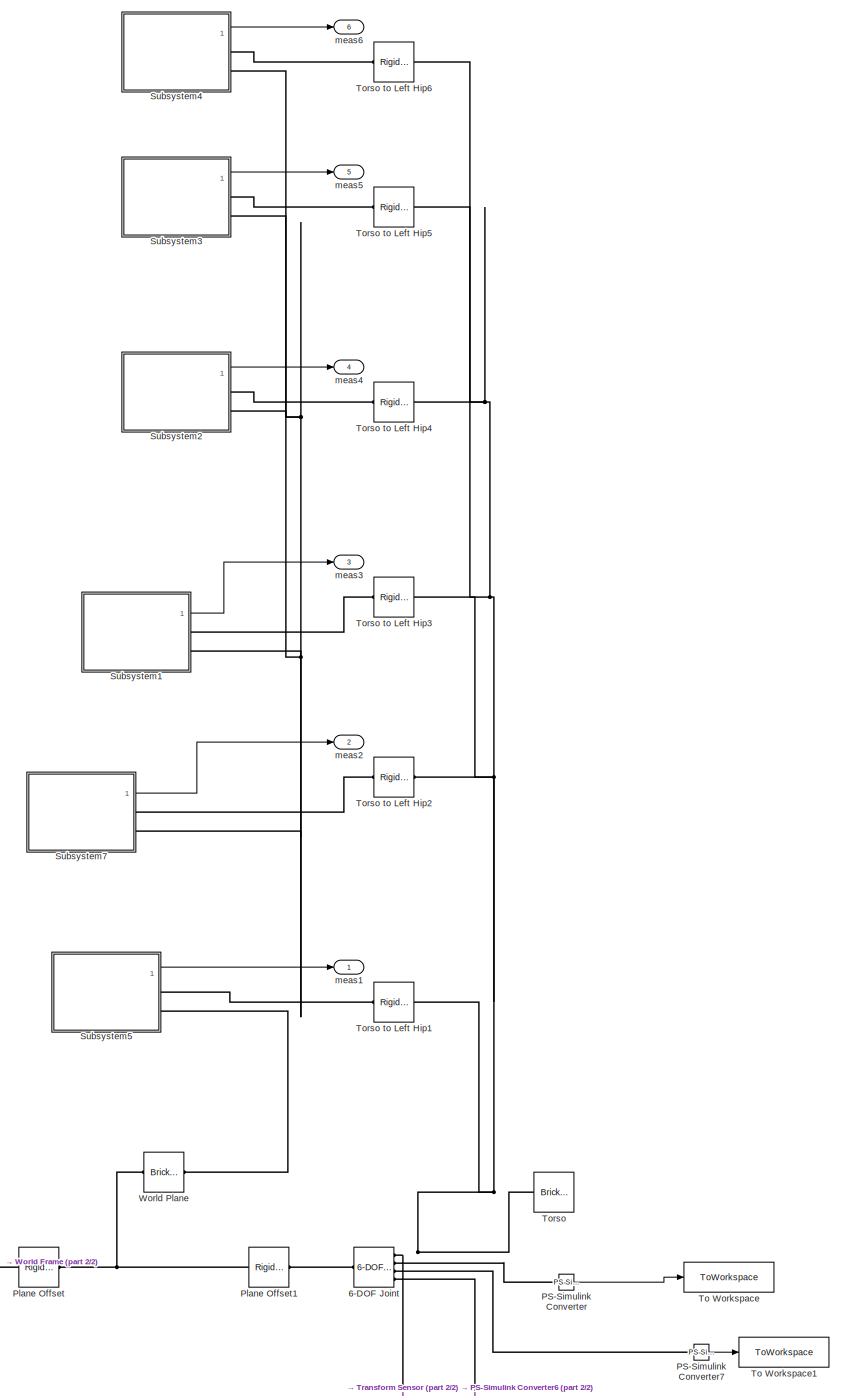
[diagram: root canvas - part 1/2, center side, full height]
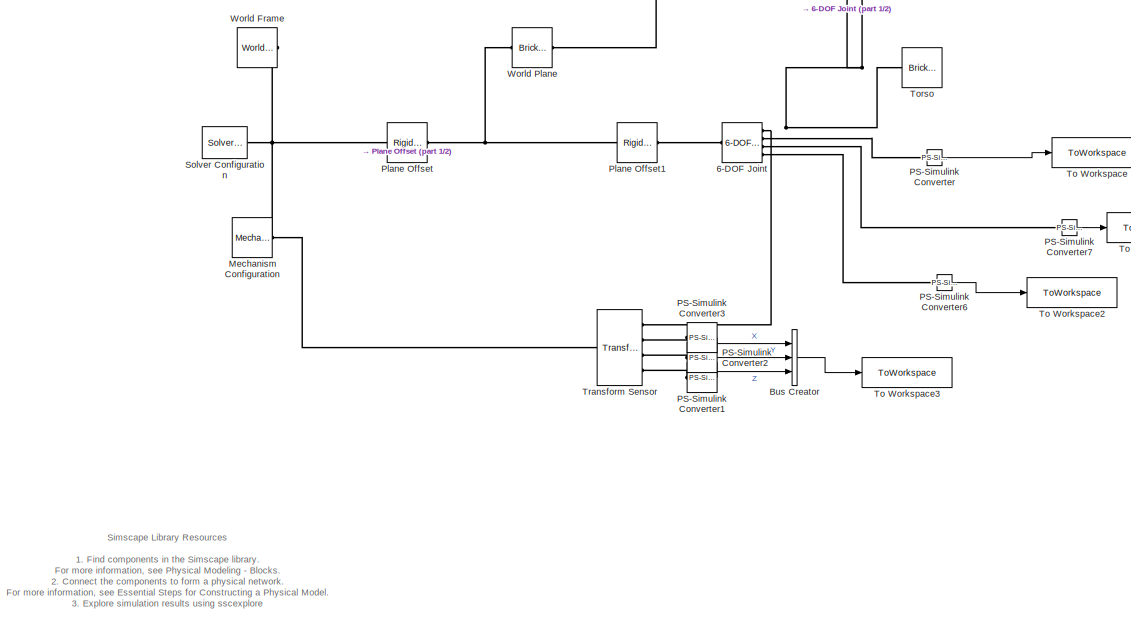
[diagram: root canvas - part 2/2, full width, bottom band]
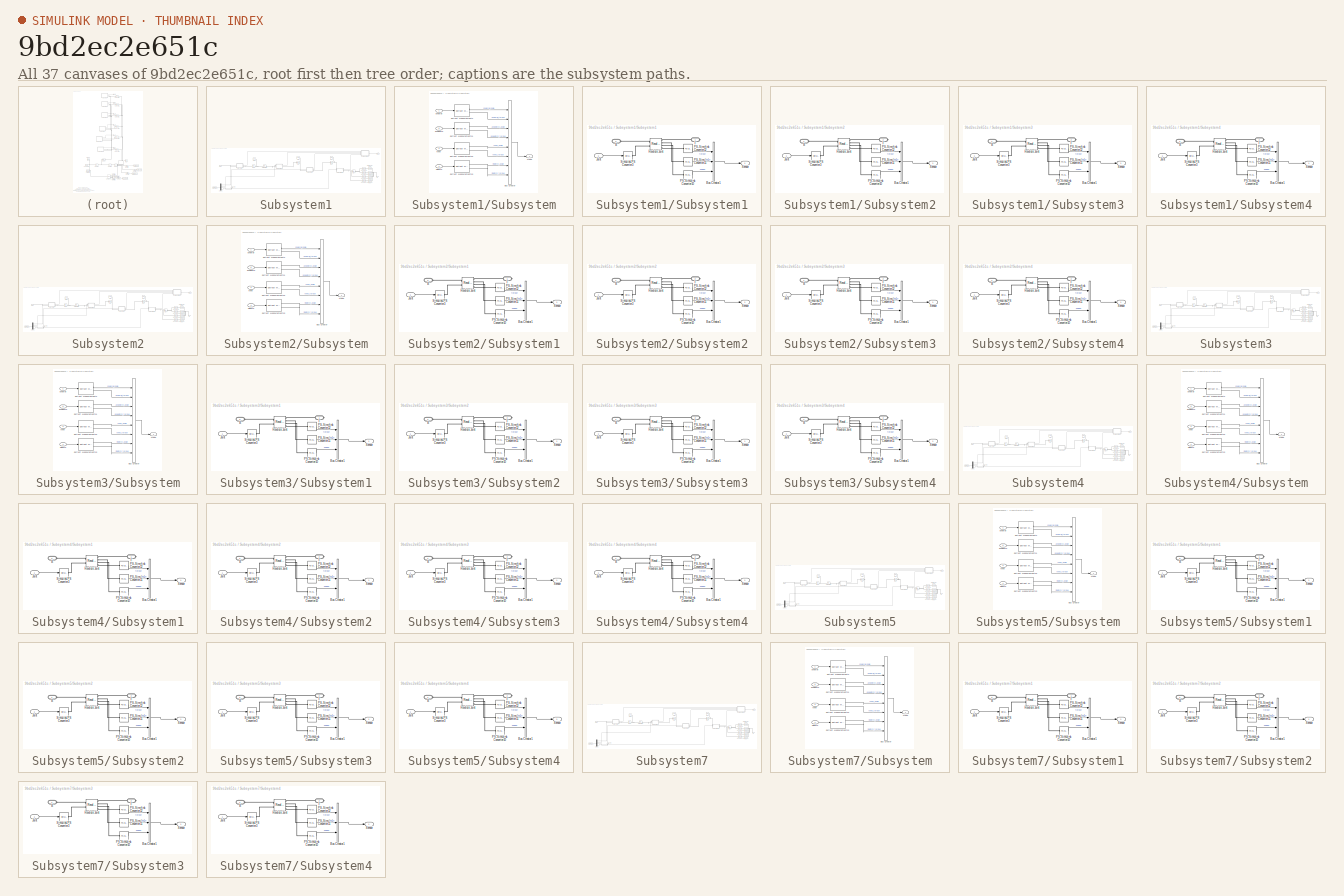
[diagram: thumbnail index - all 37 canvases of the model, root first then tree order]
MODEL slx_9bd2ec2e651c
KIND model
CONFIG AbsTol = 1e-3
CONFIG EnableMultiTasking = off
CONFIG FixedStep = auto
CONFIG MaxStep = auto
CONFIG MinStep = auto
CONFIG RelTol = 1e-3
CONFIG SampleTimeConstraint = Unconstrained
CONFIG SolverName = VariableStepAuto
CONFIG StartTime = 0.0
CONFIG StopTime = StopTime
BLOCK [Reference] 6-DOF Joint  REF=sm_lib/Joints/6-DOF Joint
  Ports = [0, 0, 0, 0, 0, 1, 4]
  SourceBlock = sm_lib/Joints/6-DOF Joint
  SourceProductBaseCode = MS
  SourceType = 6-DOF Joint
BLOCK [BusCreator] Bus Creator
  DisplayOption = bar
  InheritFromInputs = on
  Inputs = 3
  Ports = [3, 1]
BLOCK [Reference] Mechanism Configuration  REF=sm_lib/Utilities/Mechanism
Configuration
  Ports = [0, 0, 0, 0, 0, 0, 1]
  SourceBlock = sm_lib/Utilities/Mechanism\nConfiguration
  SourceProductBaseCode = MS
  SourceType = Mechanism\nConfiguration
BLOCK [Reference] PS-Simulink Converter  REF=nesl_utility/PS-Simulink
Converter
  Ports = [0, 1, 0, 0, 0, 1]
  SourceBlock = nesl_utility/PS-Simulink\nConverter
  SourceProductBaseCode = SS,PW,VE
  SourceType = PS-Simulink\nConverter
BLOCK [Reference] PS-Simulink Converter1  REF=nesl_utility/PS-Simulink
Converter
  Ports = [0, 1, 0, 0, 0, 1]
  SourceBlock = nesl_utility/PS-Simulink\nConverter
  SourceProductBaseCode = SS
  SourceType = PS-Simulink\nConverter
BLOCK [Reference] PS-Simulink Converter2  REF=nesl_utility/PS-Simulink
Converter
  Ports = [0, 1, 0, 0, 0, 1]
  SourceBlock = nesl_utility/PS-Simulink\nConverter
  SourceProductBaseCode = SS
  SourceType = PS-Simulink\nConverter
BLOCK [Reference] PS-Simulink Converter3  REF=nesl_utility/PS-Simulink
Converter
  Ports = [0, 1, 0, 0, 0, 1]
  SourceBlock = nesl_utility/PS-Simulink\nConverter
  SourceProductBaseCode = SS
  SourceType = PS-Simulink\nConverter
BLOCK [Reference] PS-Simulink Converter6  REF=nesl_utility/PS-Simulink
Converter
  Ports = [0, 1, 0, 0, 0, 1]
  SourceBlock = nesl_utility/PS-Simulink\nConverter
  SourceProductBaseCode = SS,PW,VE
  SourceType = PS-Simulink\nConverter
BLOCK [Reference] PS-Simulink Converter7  REF=nesl_utility/PS-Simulink
Converter
  Ports = [0, 1, 0, 0, 0, 1]
  SourceBlock = nesl_utility/PS-Simulink\nConverter
  SourceProductBaseCode = SS,PW,VE
  SourceType = PS-Simulink\nConverter
BLOCK [Reference] Plane Offset  REF=sm_lib/Frames and
Transforms/Rigid
Transform
  Ports = [0, 0, 0, 0, 0, 1, 1]
  SourceBlock = sm_lib/Frames and\nTransforms/Rigid\nTransform
  SourceProductBaseCode = MS
  SourceType = Rigid\nTransform
BLOCK [Reference] Plane Offset1  REF=sm_lib/Frames and
Transforms/Rigid
Transform
  Ports = [0, 0, 0, 0, 0, 1, 1]
  SourceBlock = sm_lib/Frames and\nTransforms/Rigid\nTransform
  SourceProductBaseCode = MS
  SourceType = Rigid\nTransform
BLOCK [Reference] Solver Configuration  REF=nesl_utility/Solver
Configuration
  Ports = [0, 0, 0, 0, 0, 0, 1]
  SourceBlock = nesl_utility/Solver\nConfiguration
  SourceProductBaseCode = SS,PW,VE
  SourceType = Solver\nConfiguration
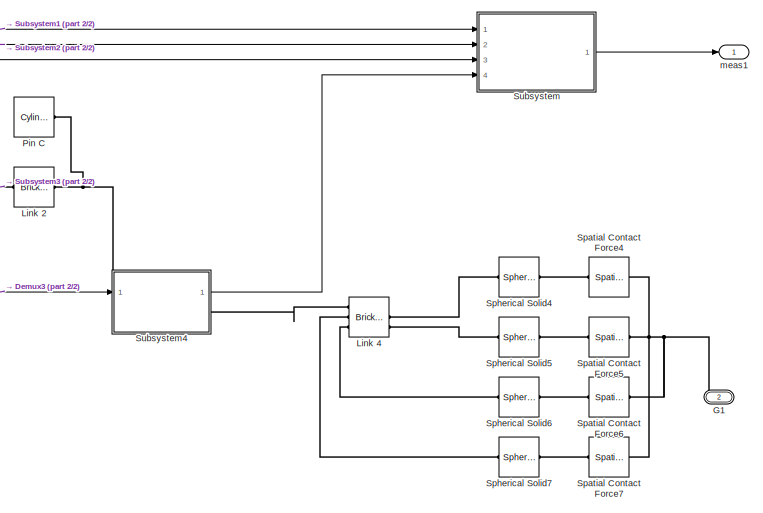
[diagram: Subsystem1 - part 1/2, right side, full height]
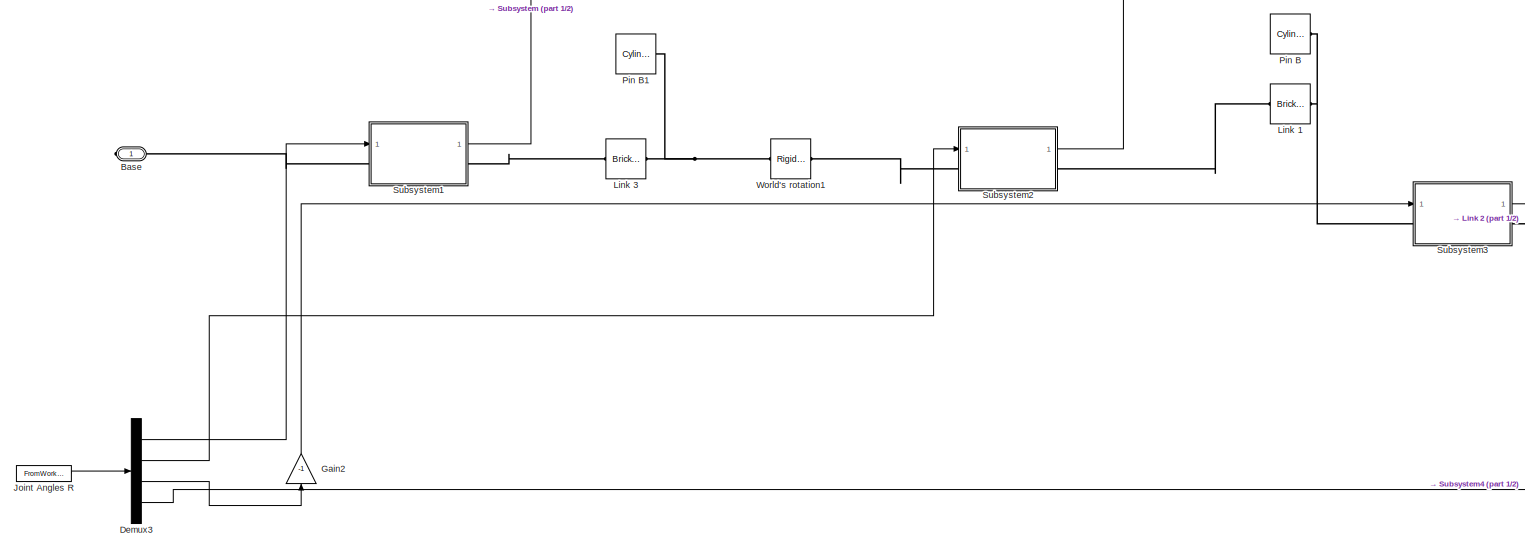
[diagram: Subsystem1 - part 2/2, left side, full height]
BLOCK [SubSystem] Subsystem1
  Ports = [0, 1, 0, 0, 0, 0, 2]
  RequestExecContextInheritance = off
BLOCK [PMIOPort] Subsystem1/Base
  NameLocation = top
  Side = Right
BLOCK [Demux] Subsystem1/Demux3
  Ports = [1, 4]
BLOCK [PMIOPort] Subsystem1/G1
  Port = 2
  Side = Right
BLOCK [Gain] Subsystem1/Gain2
  Gain = -1
  NameLocation = right
BLOCK [FromWorkspace] Subsystem1/Joint Angles R
  OutputAfterFinalValue = Holding final value
  VariableName = thetas_left_vverh
BLOCK [Reference] Subsystem1/Link 1  REF=sm_lib/Body Elements/Brick Solid
  Ports = [0, 0, 0, 0, 0, 1, 1]
  SourceBlock = sm_lib/Body Elements/Brick Solid
  SourceProductBaseCode = MS
  SourceType = Brick Solid
BLOCK [Reference] Subsystem1/Link 2  REF=sm_lib/Body Elements/Brick Solid
  Ports = [0, 0, 0, 0, 0, 1, 1]
  SourceBlock = sm_lib/Body Elements/Brick Solid
  SourceProductBaseCode = MS
  SourceType = Brick Solid
BLOCK [Reference] Subsystem1/Link 3  REF=sm_lib/Body Elements/Brick Solid
  Ports = [0, 0, 0, 0, 0, 1, 1]
  SourceBlock = sm_lib/Body Elements/Brick Solid
  SourceProductBaseCode = MS
  SourceType = Brick Solid
BLOCK [Reference] Subsystem1/Link 4  REF=sm_lib/Body Elements/Brick Solid
  Ports = [0, 0, 0, 0, 0, 3, 3]
  SourceBlock = sm_lib/Body Elements/Brick Solid
  SourceProductBaseCode = MS
  SourceType = Brick Solid
BLOCK [Reference] Subsystem1/Pin B  REF=sm_lib/Body Elements/Cylindrical Solid
  Ports = [0, 0, 0, 0, 0, 0, 1]
  SourceBlock = sm_lib/Body Elements/Cylindrical Solid
  SourceProductBaseCode = MS
  SourceType = Cylindrical Solid
BLOCK [Reference] Subsystem1/Pin B1  REF=sm_lib/Body Elements/Cylindrical Solid
  Ports = [0, 0, 0, 0, 0, 0, 1]
  SourceBlock = sm_lib/Body Elements/Cylindrical Solid
  SourceProductBaseCode = MS
  SourceType = Cylindrical Solid
BLOCK [Reference] Subsystem1/Pin C  REF=sm_lib/Body Elements/Cylindrical Solid
  Ports = [0, 0, 0, 0, 0, 0, 1]
  SourceBlock = sm_lib/Body Elements/Cylindrical Solid
  SourceProductBaseCode = MS
  SourceType = Cylindrical Solid
BLOCK [Reference] Subsystem1/Spatial Contact Force4  REF=sm_lib/Forces and
Torques/Spatial
Contact Force
  Ports = [0, 0, 0, 0, 0, 1, 1]
  SourceBlock = sm_lib/Forces and\nTorques/Spatial\nContact Force
  SourceProductBaseCode = MS
  SourceType = Spatial\nContact Force
BLOCK [Reference] Subsystem1/Spatial Contact Force5  REF=sm_lib/Forces and
Torques/Spatial
Contact Force
  Ports = [0, 0, 0, 0, 0, 1, 1]
  SourceBlock = sm_lib/Forces and\nTorques/Spatial\nContact Force
  SourceProductBaseCode = MS
  SourceType = Spatial\nContact Force
BLOCK [Reference] Subsystem1/Spatial Contact Force6  REF=sm_lib/Forces and
Torques/Spatial
Contact Force
  Ports = [0, 0, 0, 0, 0, 1, 1]
  SourceBlock = sm_lib/Forces and\nTorques/Spatial\nContact Force
  SourceProductBaseCode = MS
  SourceType = Spatial\nContact Force
BLOCK [Reference] Subsystem1/Spatial Contact Force7  REF=sm_lib/Forces and
Torques/Spatial
Contact Force
  Ports = [0, 0, 0, 0, 0, 1, 1]
  SourceBlock = sm_lib/Forces and\nTorques/Spatial\nContact Force
  SourceProductBaseCode = MS
  SourceType = Spatial\nContact Force
BLOCK [Reference] Subsystem1/Spherical Solid4  REF=sm_lib/Body Elements/Spherical Solid
  Ports = [0, 0, 0, 0, 0, 1, 1]
  SourceBlock = sm_lib/Body Elements/Spherical Solid
  SourceProductBaseCode = MS
  SourceType = Spherical Solid
BLOCK [Reference] Subsystem1/Spherical Solid5  REF=sm_lib/Body Elements/Spherical Solid
  Ports = [0, 0, 0, 0, 0, 1, 1]
  SourceBlock = sm_lib/Body Elements/Spherical Solid
  SourceProductBaseCode = MS
  SourceType = Spherical Solid
BLOCK [Reference] Subsystem1/Spherical Solid6  REF=sm_lib/Body Elements/Spherical Solid
  Ports = [0, 0, 0, 0, 0, 1, 1]
  SourceBlock = sm_lib/Body Elements/Spherical Solid
  SourceProductBaseCode = MS
  SourceType = Spherical Solid
BLOCK [Reference] Subsystem1/Spherical Solid7  REF=sm_lib/Body Elements/Spherical Solid
  Ports = [0, 0, 0, 0, 0, 1, 1]
  SourceBlock = sm_lib/Body Elements/Spherical Solid
  SourceProductBaseCode = MS
  SourceType = Spherical Solid
BLOCK [SubSystem] Subsystem1/Subsystem
  Ports = [4, 1]
  RequestExecContextInheritance = off
BLOCK [BusCreator] Subsystem1/Subsystem/Bus Creator
  DisplayOption = bar
  InheritFromInputs = on
  Inputs = 8
  Ports = [8, 1]
BLOCK [Reference] Subsystem1/Subsystem/Extract Measurements  REF=walkingRobotUtils/Package Measurements/Extract Measurements
  Ports = [1, 2]
  SourceBlock = walkingRobotUtils/Package Measurements/Extract Measurements
  SourceType = SubSystem
BLOCK [Reference] Subsystem1/Subsystem/Extract Measurements1  REF=walkingRobotUtils/Package Measurements/Extract Measurements
  Ports = [1, 2]
  SourceBlock = walkingRobotUtils/Package Measurements/Extract Measurements
  SourceType = SubSystem
BLOCK [Reference] Subsystem1/Subsystem/Extract Measurements2  REF=walkingRobotUtils/Package Measurements/Extract Measurements
  Ports = [1, 2]
  SourceBlock = walkingRobotUtils/Package Measurements/Extract Measurements
  SourceType = SubSystem
BLOCK [Reference] Subsystem1/Subsystem/Extract Measurements3  REF=walkingRobotUtils/Package Measurements/Extract Measurements
  Ports = [1, 2]
  SourceBlock = walkingRobotUtils/Package Measurements/Extract Measurements
  SourceType = SubSystem
BLOCK [Inport] Subsystem1/Subsystem/anklepitch
  Port = 2
BLOCK [Inport] Subsystem1/Subsystem/ankleroll
BLOCK [Inport] Subsystem1/Subsystem/hippitch
  Port = 4
BLOCK [Inport] Subsystem1/Subsystem/knee
  Port = 3
BLOCK [Outport] Subsystem1/Subsystem/meas
  VectorParamsAs1DForOutWhenUnconnected = off
BLOCK [SubSystem] Subsystem1/Subsystem1
  Ports = [1, 1, 0, 0, 0, 1, 1]
  RequestExecContextInheritance = off
BLOCK [PMIOPort] Subsystem1/Subsystem1/B
  Port = 2
  Side = Left
BLOCK [BusCreator] Subsystem1/Subsystem1/Bus Creator1
  DisplayOption = bar
  InheritFromInputs = on
  Inputs = 3
  Ports = [3, 1]
BLOCK [PMIOPort] Subsystem1/Subsystem1/F
  Side = Right
BLOCK [Inport] Subsystem1/Subsystem1/Joint
BLOCK [Reference] Subsystem1/Subsystem1/PS-Simulink Converter10  REF=nesl_utility/PS-Simulink
Converter
  Ports = [0, 1, 0, 0, 0, 1]
  SourceBlock = nesl_utility/PS-Simulink\nConverter
  SourceProductBaseCode = SS
  SourceType = PS-Simulink\nConverter
BLOCK [Reference] Subsystem1/Subsystem1/PS-Simulink Converter11  REF=nesl_utility/PS-Simulink
Converter
  Ports = [0, 1, 0, 0, 0, 1]
  SourceBlock = nesl_utility/PS-Simulink\nConverter
  SourceProductBaseCode = SS
  SourceType = PS-Simulink\nConverter
BLOCK [Reference] Subsystem1/Subsystem1/PS-Simulink Converter12  REF=nesl_utility/PS-Simulink
Converter
  Ports = [0, 1, 0, 0, 0, 1]
  SourceBlock = nesl_utility/PS-Simulink\nConverter
  SourceProductBaseCode = SS
  SourceType = PS-Simulink\nConverter
BLOCK [Reference] Subsystem1/Subsystem1/Revolute Joint  REF=sm_lib/Joints/Revolute Joint
  Ports = [0, 0, 0, 0, 0, 2, 4]
  SourceBlock = sm_lib/Joints/Revolute Joint
  SourceProductBaseCode = MS
  SourceType = Revolute Joint
BLOCK [Outport] Subsystem1/Subsystem1/Sensor
  VectorParamsAs1DForOutWhenUnconnected = off
BLOCK [Reference] Subsystem1/Subsystem1/Simulink-PS Converter3  REF=nesl_utility/Simulink-PS
Converter
  Ports = [1, 0, 0, 0, 0, 0, 1]
  SourceBlock = nesl_utility/Simulink-PS\nConverter
  SourceProductBaseCode = SS
  SourceType = Simulink-PS\nConverter
BLOCK [SubSystem] Subsystem1/Subsystem2
  PortSchema = {"entries":[{"content":{"sides":[{"content":{"connectorIds":["LConn1","In1"]},"type":"ConnectorPlacement.EquallySpacedRectSide","uuid":"19c8f1f7-9e27-4994-b7e3-1f92f0fa36bb"},{"content":{"connectorIds":["Out1","RConn1"],"side":"RIGHT"},"type":"ConnectorPlacement.EquallySpacedRectSide","uuid":"cf0d33d9-8329-43ce-974b-9a6bebe9e4d2"},{"content":{"connectorIds":[],"side":"TOP"},"type":"ConnectorPlacem...<+258ch>  <repeated x18 — deduplicated; at blocks: Subsystem2, Subsystem3, Subsystem4>
  Ports = [1, 1, 0, 0, 0, 1, 1]
  RequestExecContextInheritance = off
BLOCK [PMIOPort] Subsystem1/Subsystem2/B
  Side = Left
BLOCK [BusCreator] Subsystem1/Subsystem2/Bus Creator1
  DisplayOption = bar
  InheritFromInputs = on
  Inputs = 3
  Ports = [3, 1]
BLOCK [PMIOPort] Subsystem1/Subsystem2/F
  Port = 2
  Side = Right
BLOCK [Inport] Subsystem1/Subsystem2/Joint
BLOCK [Reference] Subsystem1/Subsystem2/PS-Simulink Converter10  REF=nesl_utility/PS-Simulink
Converter
  Ports = [0, 1, 0, 0, 0, 1]
  SourceBlock = nesl_utility/PS-Simulink\nConverter
  SourceProductBaseCode = SS
  SourceType = PS-Simulink\nConverter
BLOCK [Reference] Subsystem1/Subsystem2/PS-Simulink Converter11  REF=nesl_utility/PS-Simulink
Converter
  Ports = [0, 1, 0, 0, 0, 1]
  SourceBlock = nesl_utility/PS-Simulink\nConverter
  SourceProductBaseCode = SS
  SourceType = PS-Simulink\nConverter
BLOCK [Reference] Subsystem1/Subsystem2/PS-Simulink Converter12  REF=nesl_utility/PS-Simulink
Converter
  Ports = [0, 1, 0, 0, 0, 1]
  SourceBlock = nesl_utility/PS-Simulink\nConverter
  SourceProductBaseCode = SS
  SourceType = PS-Simulink\nConverter
BLOCK [Reference] Subsystem1/Subsystem2/Revolute Joint  REF=sm_lib/Joints/Revolute Joint
  Ports = [0, 0, 0, 0, 0, 2, 4]
  SourceBlock = sm_lib/Joints/Revolute Joint
  SourceProductBaseCode = MS
  SourceType = Revolute Joint
BLOCK [Outport] Subsystem1/Subsystem2/Sensor
  VectorParamsAs1DForOutWhenUnconnected = off
BLOCK [Reference] Subsystem1/Subsystem2/Simulink-PS Converter3  REF=nesl_utility/Simulink-PS
Converter
  Ports = [1, 0, 0, 0, 0, 0, 1]
  SourceBlock = nesl_utility/Simulink-PS\nConverter
  SourceProductBaseCode = SS
  SourceType = Simulink-PS\nConverter
BLOCK [SubSystem] Subsystem1/Subsystem3
  Ports = [1, 1, 0, 0, 0, 1, 1]
  RequestExecContextInheritance = off
BLOCK [PMIOPort] Subsystem1/Subsystem3/B
  Side = Left
BLOCK [BusCreator] Subsystem1/Subsystem3/Bus Creator1
  DisplayOption = bar
  InheritFromInputs = on
  Inputs = 3
  Ports = [3, 1]
BLOCK [PMIOPort] Subsystem1/Subsystem3/F
  Port = 2
  Side = Right
BLOCK [Inport] Subsystem1/Subsystem3/Joint
BLOCK [Reference] Subsystem1/Subsystem3/PS-Simulink Converter10  REF=nesl_utility/PS-Simulink
Converter
  Ports = [0, 1, 0, 0, 0, 1]
  SourceBlock = nesl_utility/PS-Simulink\nConverter
  SourceProductBaseCode = SS
  SourceType = PS-Simulink\nConverter
BLOCK [Reference] Subsystem1/Subsystem3/PS-Simulink Converter11  REF=nesl_utility/PS-Simulink
Converter
  Ports = [0, 1, 0, 0, 0, 1]
  SourceBlock = nesl_utility/PS-Simulink\nConverter
  SourceProductBaseCode = SS
  SourceType = PS-Simulink\nConverter
BLOCK [Reference] Subsystem1/Subsystem3/PS-Simulink Converter12  REF=nesl_utility/PS-Simulink
Converter
  Ports = [0, 1, 0, 0, 0, 1]
  SourceBlock = nesl_utility/PS-Simulink\nConverter
  SourceProductBaseCode = SS
  SourceType = PS-Simulink\nConverter
BLOCK [Reference] Subsystem1/Subsystem3/Revolute Joint  REF=sm_lib/Joints/Revolute Joint
  Ports = [0, 0, 0, 0, 0, 2, 4]
  SourceBlock = sm_lib/Joints/Revolute Joint
  SourceProductBaseCode = MS
  SourceType = Revolute Joint
BLOCK [Outport] Subsystem1/Subsystem3/Sensor
  VectorParamsAs1DForOutWhenUnconnected = off
BLOCK [Reference] Subsystem1/Subsystem3/Simulink-PS Converter3  REF=nesl_utility/Simulink-PS
Converter
  Ports = [1, 0, 0, 0, 0, 0, 1]
  SourceBlock = nesl_utility/Simulink-PS\nConverter
  SourceProductBaseCode = SS
  SourceType = Simulink-PS\nConverter
BLOCK [SubSystem] Subsystem1/Subsystem4
  Ports = [1, 1, 0, 0, 0, 1, 1]
  RequestExecContextInheritance = off
BLOCK [PMIOPort] Subsystem1/Subsystem4/B
  Side = Left
BLOCK [BusCreator] Subsystem1/Subsystem4/Bus Creator1
  DisplayOption = bar
  InheritFromInputs = on
  Inputs = 3
  Ports = [3, 1]
BLOCK [PMIOPort] Subsystem1/Subsystem4/F
  Port = 2
  Side = Right
BLOCK [Inport] Subsystem1/Subsystem4/Joint
BLOCK [Reference] Subsystem1/Subsystem4/PS-Simulink Converter10  REF=nesl_utility/PS-Simulink
Converter
  Ports = [0, 1, 0, 0, 0, 1]
  SourceBlock = nesl_utility/PS-Simulink\nConverter
  SourceProductBaseCode = SS
  SourceType = PS-Simulink\nConverter
BLOCK [Reference] Subsystem1/Subsystem4/PS-Simulink Converter11  REF=nesl_utility/PS-Simulink
Converter
  Ports = [0, 1, 0, 0, 0, 1]
  SourceBlock = nesl_utility/PS-Simulink\nConverter
  SourceProductBaseCode = SS
  SourceType = PS-Simulink\nConverter
BLOCK [Reference] Subsystem1/Subsystem4/PS-Simulink Converter12  REF=nesl_utility/PS-Simulink
Converter
  Ports = [0, 1, 0, 0, 0, 1]
  SourceBlock = nesl_utility/PS-Simulink\nConverter
  SourceProductBaseCode = SS
  SourceType = PS-Simulink\nConverter
BLOCK [Reference] Subsystem1/Subsystem4/Revolute Joint  REF=sm_lib/Joints/Revolute Joint
  Ports = [0, 0, 0, 0, 0, 2, 4]
  SourceBlock = sm_lib/Joints/Revolute Joint
  SourceProductBaseCode = MS
  SourceType = Revolute Joint
BLOCK [Outport] Subsystem1/Subsystem4/Sensor
  VectorParamsAs1DForOutWhenUnconnected = off
BLOCK [Reference] Subsystem1/Subsystem4/Simulink-PS Converter3  REF=nesl_utility/Simulink-PS
Converter
  Ports = [1, 0, 0, 0, 0, 0, 1]
  SourceBlock = nesl_utility/Simulink-PS\nConverter
  SourceProductBaseCode = SS
  SourceType = Simulink-PS\nConverter
BLOCK [Reference] Subsystem1/World's rotation1  REF=sm_lib/Frames and
Transforms/Rigid
Transform
  Ports = [0, 0, 0, 0, 0, 1, 1]
  SourceBlock = sm_lib/Frames and\nTransforms/Rigid\nTransform
  SourceProductBaseCode = MS
  SourceType = Rigid\nTransform
BLOCK [Outport] Subsystem1/meas1
  VectorParamsAs1DForOutWhenUnconnected = off
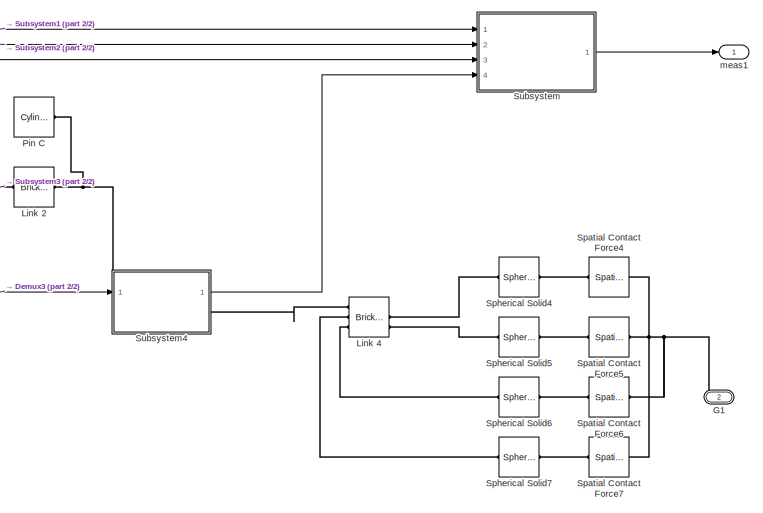
[diagram: Subsystem2 - part 1/2, right side, full height]
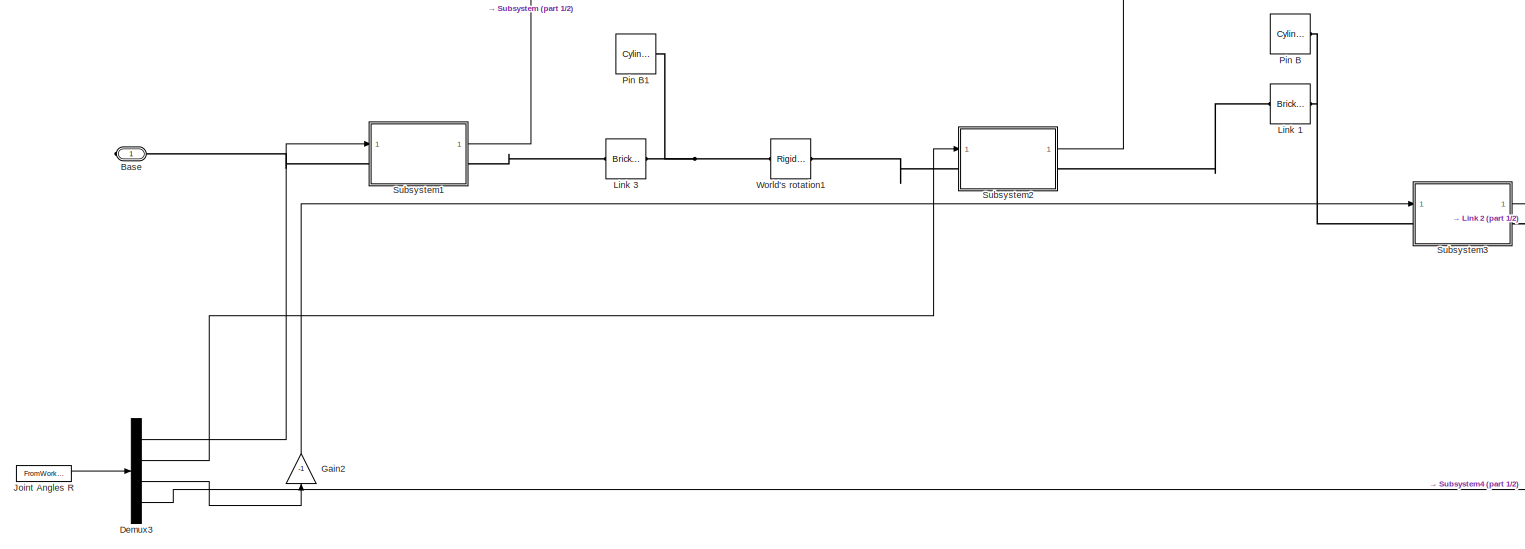
[diagram: Subsystem2 - part 2/2, left side, full height]
BLOCK [SubSystem] Subsystem2
  Ports = [0, 1, 0, 0, 0, 0, 2]
  RequestExecContextInheritance = off
BLOCK [PMIOPort] Subsystem2/Base
  NameLocation = top
  Side = Right
BLOCK [Demux] Subsystem2/Demux3
  Ports = [1, 4]
BLOCK [PMIOPort] Subsystem2/G1
  Port = 2
  Side = Right
BLOCK [Gain] Subsystem2/Gain2
  Gain = -1
  NameLocation = right
BLOCK [FromWorkspace] Subsystem2/Joint Angles R
  OutputAfterFinalValue = Holding final value
  VariableName = thetas_right_niz
BLOCK [Reference] Subsystem2/Link 1  REF=sm_lib/Body Elements/Brick Solid
  Ports = [0, 0, 0, 0, 0, 1, 1]
  SourceBlock = sm_lib/Body Elements/Brick Solid
  SourceProductBaseCode = MS
  SourceType = Brick Solid
BLOCK [Reference] Subsystem2/Link 2  REF=sm_lib/Body Elements/Brick Solid
  Ports = [0, 0, 0, 0, 0, 1, 1]
  SourceBlock = sm_lib/Body Elements/Brick Solid
  SourceProductBaseCode = MS
  SourceType = Brick Solid
BLOCK [Reference] Subsystem2/Link 3  REF=sm_lib/Body Elements/Brick Solid
  Ports = [0, 0, 0, 0, 0, 1, 1]
  SourceBlock = sm_lib/Body Elements/Brick Solid
  SourceProductBaseCode = MS
  SourceType = Brick Solid
BLOCK [Reference] Subsystem2/Link 4  REF=sm_lib/Body Elements/Brick Solid
  Ports = [0, 0, 0, 0, 0, 3, 3]
  SourceBlock = sm_lib/Body Elements/Brick Solid
  SourceProductBaseCode = MS
  SourceType = Brick Solid
BLOCK [Reference] Subsystem2/Pin B  REF=sm_lib/Body Elements/Cylindrical Solid
  Ports = [0, 0, 0, 0, 0, 0, 1]
  SourceBlock = sm_lib/Body Elements/Cylindrical Solid
  SourceProductBaseCode = MS
  SourceType = Cylindrical Solid
BLOCK [Reference] Subsystem2/Pin B1  REF=sm_lib/Body Elements/Cylindrical Solid
  Ports = [0, 0, 0, 0, 0, 0, 1]
  SourceBlock = sm_lib/Body Elements/Cylindrical Solid
  SourceProductBaseCode = MS
  SourceType = Cylindrical Solid
BLOCK [Reference] Subsystem2/Pin C  REF=sm_lib/Body Elements/Cylindrical Solid
  Ports = [0, 0, 0, 0, 0, 0, 1]
  SourceBlock = sm_lib/Body Elements/Cylindrical Solid
  SourceProductBaseCode = MS
  SourceType = Cylindrical Solid
BLOCK [Reference] Subsystem2/Spatial Contact Force4  REF=sm_lib/Forces and
Torques/Spatial
Contact Force
  Ports = [0, 0, 0, 0, 0, 1, 1]
  SourceBlock = sm_lib/Forces and\nTorques/Spatial\nContact Force
  SourceProductBaseCode = MS
  SourceType = Spatial\nContact Force
BLOCK [Reference] Subsystem2/Spatial Contact Force5  REF=sm_lib/Forces and
Torques/Spatial
Contact Force
  Ports = [0, 0, 0, 0, 0, 1, 1]
  SourceBlock = sm_lib/Forces and\nTorques/Spatial\nContact Force
  SourceProductBaseCode = MS
  SourceType = Spatial\nContact Force
BLOCK [Reference] Subsystem2/Spatial Contact Force6  REF=sm_lib/Forces and
Torques/Spatial
Contact Force
  Ports = [0, 0, 0, 0, 0, 1, 1]
  SourceBlock = sm_lib/Forces and\nTorques/Spatial\nContact Force
  SourceProductBaseCode = MS
  SourceType = Spatial\nContact Force
BLOCK [Reference] Subsystem2/Spatial Contact Force7  REF=sm_lib/Forces and
Torques/Spatial
Contact Force
  Ports = [0, 0, 0, 0, 0, 1, 1]
  SourceBlock = sm_lib/Forces and\nTorques/Spatial\nContact Force
  SourceProductBaseCode = MS
  SourceType = Spatial\nContact Force
BLOCK [Reference] Subsystem2/Spherical Solid4  REF=sm_lib/Body Elements/Spherical Solid
  Ports = [0, 0, 0, 0, 0, 1, 1]
  SourceBlock = sm_lib/Body Elements/Spherical Solid
  SourceProductBaseCode = MS
  SourceType = Spherical Solid
BLOCK [Reference] Subsystem2/Spherical Solid5  REF=sm_lib/Body Elements/Spherical Solid
  Ports = [0, 0, 0, 0, 0, 1, 1]
  SourceBlock = sm_lib/Body Elements/Spherical Solid
  SourceProductBaseCode = MS
  SourceType = Spherical Solid
BLOCK [Reference] Subsystem2/Spherical Solid6  REF=sm_lib/Body Elements/Spherical Solid
  Ports = [0, 0, 0, 0, 0, 1, 1]
  SourceBlock = sm_lib/Body Elements/Spherical Solid
  SourceProductBaseCode = MS
  SourceType = Spherical Solid
BLOCK [Reference] Subsystem2/Spherical Solid7  REF=sm_lib/Body Elements/Spherical Solid
  Ports = [0, 0, 0, 0, 0, 1, 1]
  SourceBlock = sm_lib/Body Elements/Spherical Solid
  SourceProductBaseCode = MS
  SourceType = Spherical Solid
BLOCK [SubSystem] Subsystem2/Subsystem
  Ports = [4, 1]
  RequestExecContextInheritance = off
BLOCK [BusCreator] Subsystem2/Subsystem/Bus Creator
  DisplayOption = bar
  InheritFromInputs = on
  Inputs = 8
  Ports = [8, 1]
BLOCK [Reference] Subsystem2/Subsystem/Extract Measurements  REF=walkingRobotUtils/Package Measurements/Extract Measurements
  Ports = [1, 2]
  SourceBlock = walkingRobotUtils/Package Measurements/Extract Measurements
  SourceType = SubSystem
BLOCK [Reference] Subsystem2/Subsystem/Extract Measurements1  REF=walkingRobotUtils/Package Measurements/Extract Measurements
  Ports = [1, 2]
  SourceBlock = walkingRobotUtils/Package Measurements/Extract Measurements
  SourceType = SubSystem
BLOCK [Reference] Subsystem2/Subsystem/Extract Measurements2  REF=walkingRobotUtils/Package Measurements/Extract Measurements
  Ports = [1, 2]
  SourceBlock = walkingRobotUtils/Package Measurements/Extract Measurements
  SourceType = SubSystem
BLOCK [Reference] Subsystem2/Subsystem/Extract Measurements3  REF=walkingRobotUtils/Package Measurements/Extract Measurements
  Ports = [1, 2]
  SourceBlock = walkingRobotUtils/Package Measurements/Extract Measurements
  SourceType = SubSystem
BLOCK [Inport] Subsystem2/Subsystem/anklepitch
  Port = 2
BLOCK [Inport] Subsystem2/Subsystem/ankleroll
BLOCK [Inport] Subsystem2/Subsystem/hippitch
  Port = 4
BLOCK [Inport] Subsystem2/Subsystem/knee
  Port = 3
BLOCK [Outport] Subsystem2/Subsystem/meas
  VectorParamsAs1DForOutWhenUnconnected = off
BLOCK [SubSystem] Subsystem2/Subsystem1
  Ports = [1, 1, 0, 0, 0, 1, 1]
  RequestExecContextInheritance = off
BLOCK [PMIOPort] Subsystem2/Subsystem1/B
  Port = 2
  Side = Left
BLOCK [BusCreator] Subsystem2/Subsystem1/Bus Creator1
  DisplayOption = bar
  InheritFromInputs = on
  Inputs = 3
  Ports = [3, 1]
BLOCK [PMIOPort] Subsystem2/Subsystem1/F
  Side = Right
BLOCK [Inport] Subsystem2/Subsystem1/Joint
BLOCK [Reference] Subsystem2/Subsystem1/PS-Simulink Converter10  REF=nesl_utility/PS-Simulink
Converter
  Ports = [0, 1, 0, 0, 0, 1]
  SourceBlock = nesl_utility/PS-Simulink\nConverter
  SourceProductBaseCode = SS
  SourceType = PS-Simulink\nConverter
BLOCK [Reference] Subsystem2/Subsystem1/PS-Simulink Converter11  REF=nesl_utility/PS-Simulink
Converter
  Ports = [0, 1, 0, 0, 0, 1]
  SourceBlock = nesl_utility/PS-Simulink\nConverter
  SourceProductBaseCode = SS
  SourceType = PS-Simulink\nConverter
BLOCK [Reference] Subsystem2/Subsystem1/PS-Simulink Converter12  REF=nesl_utility/PS-Simulink
Converter
  Ports = [0, 1, 0, 0, 0, 1]
  SourceBlock = nesl_utility/PS-Simulink\nConverter
  SourceProductBaseCode = SS
  SourceType = PS-Simulink\nConverter
BLOCK [Reference] Subsystem2/Subsystem1/Revolute Joint  REF=sm_lib/Joints/Revolute Joint
  Ports = [0, 0, 0, 0, 0, 2, 4]
  SourceBlock = sm_lib/Joints/Revolute Joint
  SourceProductBaseCode = MS
  SourceType = Revolute Joint
BLOCK [Outport] Subsystem2/Subsystem1/Sensor
  VectorParamsAs1DForOutWhenUnconnected = off
BLOCK [Reference] Subsystem2/Subsystem1/Simulink-PS Converter3  REF=nesl_utility/Simulink-PS
Converter
  Ports = [1, 0, 0, 0, 0, 0, 1]
  SourceBlock = nesl_utility/Simulink-PS\nConverter
  SourceProductBaseCode = SS
  SourceType = Simulink-PS\nConverter
BLOCK [SubSystem] Subsystem2/Subsystem2
  Ports = [1, 1, 0, 0, 0, 1, 1]
  RequestExecContextInheritance = off
BLOCK [PMIOPort] Subsystem2/Subsystem2/B
  Side = Left
BLOCK [BusCreator] Subsystem2/Subsystem2/Bus Creator1
  DisplayOption = bar
  InheritFromInputs = on
  Inputs = 3
  Ports = [3, 1]
BLOCK [PMIOPort] Subsystem2/Subsystem2/F
  Port = 2
  Side = Right
BLOCK [Inport] Subsystem2/Subsystem2/Joint
BLOCK [Reference] Subsystem2/Subsystem2/PS-Simulink Converter10  REF=nesl_utility/PS-Simulink
Converter
  Ports = [0, 1, 0, 0, 0, 1]
  SourceBlock = nesl_utility/PS-Simulink\nConverter
  SourceProductBaseCode = SS
  SourceType = PS-Simulink\nConverter
BLOCK [Reference] Subsystem2/Subsystem2/PS-Simulink Converter11  REF=nesl_utility/PS-Simulink
Converter
  Ports = [0, 1, 0, 0, 0, 1]
  SourceBlock = nesl_utility/PS-Simulink\nConverter
  SourceProductBaseCode = SS
  SourceType = PS-Simulink\nConverter
BLOCK [Reference] Subsystem2/Subsystem2/PS-Simulink Converter12  REF=nesl_utility/PS-Simulink
Converter
  Ports = [0, 1, 0, 0, 0, 1]
  SourceBlock = nesl_utility/PS-Simulink\nConverter
  SourceProductBaseCode = SS
  SourceType = PS-Simulink\nConverter
BLOCK [Reference] Subsystem2/Subsystem2/Revolute Joint  REF=sm_lib/Joints/Revolute Joint
  Ports = [0, 0, 0, 0, 0, 2, 4]
  SourceBlock = sm_lib/Joints/Revolute Joint
  SourceProductBaseCode = MS
  SourceType = Revolute Joint
BLOCK [Outport] Subsystem2/Subsystem2/Sensor
  VectorParamsAs1DForOutWhenUnconnected = off
BLOCK [Reference] Subsystem2/Subsystem2/Simulink-PS Converter3  REF=nesl_utility/Simulink-PS
Converter
  Ports = [1, 0, 0, 0, 0, 0, 1]
  SourceBlock = nesl_utility/Simulink-PS\nConverter
  SourceProductBaseCode = SS
  SourceType = Simulink-PS\nConverter
BLOCK [SubSystem] Subsystem2/Subsystem3
  Ports = [1, 1, 0, 0, 0, 1, 1]
  RequestExecContextInheritance = off
BLOCK [PMIOPort] Subsystem2/Subsystem3/B
  Side = Left
BLOCK [BusCreator] Subsystem2/Subsystem3/Bus Creator1
  DisplayOption = bar
  InheritFromInputs = on
  Inputs = 3
  Ports = [3, 1]
BLOCK [PMIOPort] Subsystem2/Subsystem3/F
  Port = 2
  Side = Right
BLOCK [Inport] Subsystem2/Subsystem3/Joint
BLOCK [Reference] Subsystem2/Subsystem3/PS-Simulink Converter10  REF=nesl_utility/PS-Simulink
Converter
  Ports = [0, 1, 0, 0, 0, 1]
  SourceBlock = nesl_utility/PS-Simulink\nConverter
  SourceProductBaseCode = SS
  SourceType = PS-Simulink\nConverter
BLOCK [Reference] Subsystem2/Subsystem3/PS-Simulink Converter11  REF=nesl_utility/PS-Simulink
Converter
  Ports = [0, 1, 0, 0, 0, 1]
  SourceBlock = nesl_utility/PS-Simulink\nConverter
  SourceProductBaseCode = SS
  SourceType = PS-Simulink\nConverter
BLOCK [Reference] Subsystem2/Subsystem3/PS-Simulink Converter12  REF=nesl_utility/PS-Simulink
Converter
  Ports = [0, 1, 0, 0, 0, 1]
  SourceBlock = nesl_utility/PS-Simulink\nConverter
  SourceProductBaseCode = SS
  SourceType = PS-Simulink\nConverter
BLOCK [Reference] Subsystem2/Subsystem3/Revolute Joint  REF=sm_lib/Joints/Revolute Joint
  Ports = [0, 0, 0, 0, 0, 2, 4]
  SourceBlock = sm_lib/Joints/Revolute Joint
  SourceProductBaseCode = MS
  SourceType = Revolute Joint
BLOCK [Outport] Subsystem2/Subsystem3/Sensor
  VectorParamsAs1DForOutWhenUnconnected = off
BLOCK [Reference] Subsystem2/Subsystem3/Simulink-PS Converter3  REF=nesl_utility/Simulink-PS
Converter
  Ports = [1, 0, 0, 0, 0, 0, 1]
  SourceBlock = nesl_utility/Simulink-PS\nConverter
  SourceProductBaseCode = SS
  SourceType = Simulink-PS\nConverter
BLOCK [SubSystem] Subsystem2/Subsystem4
  Ports = [1, 1, 0, 0, 0, 1, 1]
  RequestExecContextInheritance = off
BLOCK [PMIOPort] Subsystem2/Subsystem4/B
  Side = Left
BLOCK [BusCreator] Subsystem2/Subsystem4/Bus Creator1
  DisplayOption = bar
  InheritFromInputs = on
  Inputs = 3
  Ports = [3, 1]
BLOCK [PMIOPort] Subsystem2/Subsystem4/F
  Port = 2
  Side = Right
BLOCK [Inport] Subsystem2/Subsystem4/Joint
BLOCK [Reference] Subsystem2/Subsystem4/PS-Simulink Converter10  REF=nesl_utility/PS-Simulink
Converter
  Ports = [0, 1, 0, 0, 0, 1]
  SourceBlock = nesl_utility/PS-Simulink\nConverter
  SourceProductBaseCode = SS
  SourceType = PS-Simulink\nConverter
BLOCK [Reference] Subsystem2/Subsystem4/PS-Simulink Converter11  REF=nesl_utility/PS-Simulink
Converter
  Ports = [0, 1, 0, 0, 0, 1]
  SourceBlock = nesl_utility/PS-Simulink\nConverter
  SourceProductBaseCode = SS
  SourceType = PS-Simulink\nConverter
BLOCK [Reference] Subsystem2/Subsystem4/PS-Simulink Converter12  REF=nesl_utility/PS-Simulink
Converter
  Ports = [0, 1, 0, 0, 0, 1]
  SourceBlock = nesl_utility/PS-Simulink\nConverter
  SourceProductBaseCode = SS
  SourceType = PS-Simulink\nConverter
BLOCK [Reference] Subsystem2/Subsystem4/Revolute Joint  REF=sm_lib/Joints/Revolute Joint
  Ports = [0, 0, 0, 0, 0, 2, 4]
  SourceBlock = sm_lib/Joints/Revolute Joint
  SourceProductBaseCode = MS
  SourceType = Revolute Joint
BLOCK [Outport] Subsystem2/Subsystem4/Sensor
  VectorParamsAs1DForOutWhenUnconnected = off
BLOCK [Reference] Subsystem2/Subsystem4/Simulink-PS Converter3  REF=nesl_utility/Simulink-PS
Converter
  Ports = [1, 0, 0, 0, 0, 0, 1]
  SourceBlock = nesl_utility/Simulink-PS\nConverter
  SourceProductBaseCode = SS
  SourceType = Simulink-PS\nConverter
BLOCK [Reference] Subsystem2/World's rotation1  REF=sm_lib/Frames and
Transforms/Rigid
Transform
  Ports = [0, 0, 0, 0, 0, 1, 1]
  SourceBlock = sm_lib/Frames and\nTransforms/Rigid\nTransform
  SourceProductBaseCode = MS
  SourceType = Rigid\nTransform
BLOCK [Outport] Subsystem2/meas1
  VectorParamsAs1DForOutWhenUnconnected = off
BLOCK [SubSystem] Subsystem3
  Ports = [0, 1, 0, 0, 0, 0, 2]
  RequestExecContextInheritance = off
BLOCK [PMIOPort] Subsystem3/Base
  NameLocation = top
  Side = Right
BLOCK [Demux] Subsystem3/Demux3
  Ports = [1, 4]
BLOCK [PMIOPort] Subsystem3/G1
  Port = 2
  Side = Right
BLOCK [Gain] Subsystem3/Gain2
  Gain = -1
  NameLocation = right
BLOCK [FromWorkspace] Subsystem3/Joint Angles R
  OutputAfterFinalValue = Holding final value
  VariableName = thetas_left_niz
BLOCK [Reference] Subsystem3/Link 1  REF=sm_lib/Body Elements/Brick Solid
  Ports = [0, 0, 0, 0, 0, 1, 1]
  SourceBlock = sm_lib/Body Elements/Brick Solid
  SourceProductBaseCode = MS
  SourceType = Brick Solid
BLOCK [Reference] Subsystem3/Link 2  REF=sm_lib/Body Elements/Brick Solid
  Ports = [0, 0, 0, 0, 0, 1, 1]
  SourceBlock = sm_lib/Body Elements/Brick Solid
  SourceProductBaseCode = MS
  SourceType = Brick Solid
BLOCK [Reference] Subsystem3/Link 3  REF=sm_lib/Body Elements/Brick Solid
  Ports = [0, 0, 0, 0, 0, 1, 1]
  SourceBlock = sm_lib/Body Elements/Brick Solid
  SourceProductBaseCode = MS
  SourceType = Brick Solid
BLOCK [Reference] Subsystem3/Link 4  REF=sm_lib/Body Elements/Brick Solid
  Ports = [0, 0, 0, 0, 0, 3, 3]
  SourceBlock = sm_lib/Body Elements/Brick Solid
  SourceProductBaseCode = MS
  SourceType = Brick Solid
BLOCK [Reference] Subsystem3/Pin B  REF=sm_lib/Body Elements/Cylindrical Solid
  Ports = [0, 0, 0, 0, 0, 0, 1]
  SourceBlock = sm_lib/Body Elements/Cylindrical Solid
  SourceProductBaseCode = MS
  SourceType = Cylindrical Solid
BLOCK [Reference] Subsystem3/Pin B1  REF=sm_lib/Body Elements/Cylindrical Solid
  Ports = [0, 0, 0, 0, 0, 0, 1]
  SourceBlock = sm_lib/Body Elements/Cylindrical Solid
  SourceProductBaseCode = MS
  SourceType = Cylindrical Solid
BLOCK [Reference] Subsystem3/Pin C  REF=sm_lib/Body Elements/Cylindrical Solid
  Ports = [0, 0, 0, 0, 0, 0, 1]
  SourceBlock = sm_lib/Body Elements/Cylindrical Solid
  SourceProductBaseCode = MS
  SourceType = Cylindrical Solid
BLOCK [Reference] Subsystem3/Spatial Contact Force4  REF=sm_lib/Forces and
Torques/Spatial
Contact Force
  Ports = [0, 0, 0, 0, 0, 1, 1]
  SourceBlock = sm_lib/Forces and\nTorques/Spatial\nContact Force
  SourceProductBaseCode = MS
  SourceType = Spatial\nContact Force
BLOCK [Reference] Subsystem3/Spatial Contact Force5  REF=sm_lib/Forces and
Torques/Spatial
Contact Force
  Ports = [0, 0, 0, 0, 0, 1, 1]
  SourceBlock = sm_lib/Forces and\nTorques/Spatial\nContact Force
  SourceProductBaseCode = MS
  SourceType = Spatial\nContact Force
BLOCK [Reference] Subsystem3/Spatial Contact Force6  REF=sm_lib/Forces and
Torques/Spatial
Contact Force
  Ports = [0, 0, 0, 0, 0, 1, 1]
  SourceBlock = sm_lib/Forces and\nTorques/Spatial\nContact Force
  SourceProductBaseCode = MS
  SourceType = Spatial\nContact Force
BLOCK [Reference] Subsystem3/Spatial Contact Force7  REF=sm_lib/Forces and
Torques/Spatial
Contact Force
  Ports = [0, 0, 0, 0, 0, 1, 1]
  SourceBlock = sm_lib/Forces and\nTorques/Spatial\nContact Force
  SourceProductBaseCode = MS
  SourceType = Spatial\nContact Force
BLOCK [Reference] Subsystem3/Spherical Solid4  REF=sm_lib/Body Elements/Spherical Solid
  Ports = [0, 0, 0, 0, 0, 1, 1]
  SourceBlock = sm_lib/Body Elements/Spherical Solid
  SourceProductBaseCode = MS
  SourceType = Spherical Solid
BLOCK [Reference] Subsystem3/Spherical Solid5  REF=sm_lib/Body Elements/Spherical Solid
  Ports = [0, 0, 0, 0, 0, 1, 1]
  SourceBlock = sm_lib/Body Elements/Spherical Solid
  SourceProductBaseCode = MS
  SourceType = Spherical Solid
BLOCK [Reference] Subsystem3/Spherical Solid6  REF=sm_lib/Body Elements/Spherical Solid
  Ports = [0, 0, 0, 0, 0, 1, 1]
  SourceBlock = sm_lib/Body Elements/Spherical Solid
  SourceProductBaseCode = MS
  SourceType = Spherical Solid
BLOCK [Reference] Subsystem3/Spherical Solid7  REF=sm_lib/Body Elements/Spherical Solid
  Ports = [0, 0, 0, 0, 0, 1, 1]
  SourceBlock = sm_lib/Body Elements/Spherical Solid
  SourceProductBaseCode = MS
  SourceType = Spherical Solid
BLOCK [SubSystem] Subsystem3/Subsystem
  Ports = [4, 1]
  RequestExecContextInheritance = off
BLOCK [BusCreator] Subsystem3/Subsystem/Bus Creator
  DisplayOption = bar
  InheritFromInputs = on
  Inputs = 8
  Ports = [8, 1]
BLOCK [Reference] Subsystem3/Subsystem/Extract Measurements  REF=walkingRobotUtils/Package Measurements/Extract Measurements
  Ports = [1, 2]
  SourceBlock = walkingRobotUtils/Package Measurements/Extract Measurements
  SourceType = SubSystem
BLOCK [Reference] Subsystem3/Subsystem/Extract Measurements1  REF=walkingRobotUtils/Package Measurements/Extract Measurements
  Ports = [1, 2]
  SourceBlock = walkingRobotUtils/Package Measurements/Extract Measurements
  SourceType = SubSystem
BLOCK [Reference] Subsystem3/Subsystem/Extract Measurements2  REF=walkingRobotUtils/Package Measurements/Extract Measurements
  Ports = [1, 2]
  SourceBlock = walkingRobotUtils/Package Measurements/Extract Measurements
  SourceType = SubSystem
BLOCK [Reference] Subsystem3/Subsystem/Extract Measurements3  REF=walkingRobotUtils/Package Measurements/Extract Measurements
  Ports = [1, 2]
  SourceBlock = walkingRobotUtils/Package Measurements/Extract Measurements
  SourceType = SubSystem
BLOCK [Inport] Subsystem3/Subsystem/anklepitch
  Port = 2
BLOCK [Inport] Subsystem3/Subsystem/ankleroll
BLOCK [Inport] Subsystem3/Subsystem/hippitch
  Port = 4
BLOCK [Inport] Subsystem3/Subsystem/knee
  Port = 3
BLOCK [Outport] Subsystem3/Subsystem/meas
  VectorParamsAs1DForOutWhenUnconnected = off
BLOCK [SubSystem] Subsystem3/Subsystem1
  Ports = [1, 1, 0, 0, 0, 1, 1]
  RequestExecContextInheritance = off
BLOCK [PMIOPort] Subsystem3/Subsystem1/B
  Port = 2
  Side = Left
BLOCK [BusCreator] Subsystem3/Subsystem1/Bus Creator1
  DisplayOption = bar
  InheritFromInputs = on
  Inputs = 3
  Ports = [3, 1]
BLOCK [PMIOPort] Subsystem3/Subsystem1/F
  Side = Right
BLOCK [Inport] Subsystem3/Subsystem1/Joint
BLOCK [Reference] Subsystem3/Subsystem1/PS-Simulink Converter10  REF=nesl_utility/PS-Simulink
Converter
  Ports = [0, 1, 0, 0, 0, 1]
  SourceBlock = nesl_utility/PS-Simulink\nConverter
  SourceProductBaseCode = SS
  SourceType = PS-Simulink\nConverter
BLOCK [Reference] Subsystem3/Subsystem1/PS-Simulink Converter11  REF=nesl_utility/PS-Simulink
Converter
  Ports = [0, 1, 0, 0, 0, 1]
  SourceBlock = nesl_utility/PS-Simulink\nConverter
  SourceProductBaseCode = SS
  SourceType = PS-Simulink\nConverter
BLOCK [Reference] Subsystem3/Subsystem1/PS-Simulink Converter12  REF=nesl_utility/PS-Simulink
Converter
  Ports = [0, 1, 0, 0, 0, 1]
  SourceBlock = nesl_utility/PS-Simulink\nConverter
  SourceProductBaseCode = SS
  SourceType = PS-Simulink\nConverter
BLOCK [Reference] Subsystem3/Subsystem1/Revolute Joint  REF=sm_lib/Joints/Revolute Joint
  Ports = [0, 0, 0, 0, 0, 2, 4]
  SourceBlock = sm_lib/Joints/Revolute Joint
  SourceProductBaseCode = MS
  SourceType = Revolute Joint
BLOCK [Outport] Subsystem3/Subsystem1/Sensor
  VectorParamsAs1DForOutWhenUnconnected = off
BLOCK [Reference] Subsystem3/Subsystem1/Simulink-PS Converter3  REF=nesl_utility/Simulink-PS
Converter
  Ports = [1, 0, 0, 0, 0, 0, 1]
  SourceBlock = nesl_utility/Simulink-PS\nConverter
  SourceProductBaseCode = SS
  SourceType = Simulink-PS\nConverter
BLOCK [SubSystem] Subsystem3/Subsystem2
  Ports = [1, 1, 0, 0, 0, 1, 1]
  RequestExecContextInheritance = off
BLOCK [PMIOPort] Subsystem3/Subsystem2/B
  Side = Left
BLOCK [BusCreator] Subsystem3/Subsystem2/Bus Creator1
  DisplayOption = bar
  InheritFromInputs = on
  Inputs = 3
  Ports = [3, 1]
BLOCK [PMIOPort] Subsystem3/Subsystem2/F
  Port = 2
  Side = Right
BLOCK [Inport] Subsystem3/Subsystem2/Joint
BLOCK [Reference] Subsystem3/Subsystem2/PS-Simulink Converter10  REF=nesl_utility/PS-Simulink
Converter
  Ports = [0, 1, 0, 0, 0, 1]
  SourceBlock = nesl_utility/PS-Simulink\nConverter
  SourceProductBaseCode = SS
  SourceType = PS-Simulink\nConverter
BLOCK [Reference] Subsystem3/Subsystem2/PS-Simulink Converter11  REF=nesl_utility/PS-Simulink
Converter
  Ports = [0, 1, 0, 0, 0, 1]
  SourceBlock = nesl_utility/PS-Simulink\nConverter
  SourceProductBaseCode = SS
  SourceType = PS-Simulink\nConverter
BLOCK [Reference] Subsystem3/Subsystem2/PS-Simulink Converter12  REF=nesl_utility/PS-Simulink
Converter
  Ports = [0, 1, 0, 0, 0, 1]
  SourceBlock = nesl_utility/PS-Simulink\nConverter
  SourceProductBaseCode = SS
  SourceType = PS-Simulink\nConverter
BLOCK [Reference] Subsystem3/Subsystem2/Revolute Joint  REF=sm_lib/Joints/Revolute Joint
  Ports = [0, 0, 0, 0, 0, 2, 4]
  SourceBlock = sm_lib/Joints/Revolute Joint
  SourceProductBaseCode = MS
  SourceType = Revolute Joint
BLOCK [Outport] Subsystem3/Subsystem2/Sensor
  VectorParamsAs1DForOutWhenUnconnected = off
BLOCK [Reference] Subsystem3/Subsystem2/Simulink-PS Converter3  REF=nesl_utility/Simulink-PS
Converter
  Ports = [1, 0, 0, 0, 0, 0, 1]
  SourceBlock = nesl_utility/Simulink-PS\nConverter
  SourceProductBaseCode = SS
  SourceType = Simulink-PS\nConverter
BLOCK [SubSystem] Subsystem3/Subsystem3
  Ports = [1, 1, 0, 0, 0, 1, 1]
  RequestExecContextInheritance = off
BLOCK [PMIOPort] Subsystem3/Subsystem3/B
  Side = Left
BLOCK [BusCreator] Subsystem3/Subsystem3/Bus Creator1
  DisplayOption = bar
  InheritFromInputs = on
  Inputs = 3
  Ports = [3, 1]
BLOCK [PMIOPort] Subsystem3/Subsystem3/F
  Port = 2
  Side = Right
BLOCK [Inport] Subsystem3/Subsystem3/Joint
BLOCK [Reference] Subsystem3/Subsystem3/PS-Simulink Converter10  REF=nesl_utility/PS-Simulink
Converter
  Ports = [0, 1, 0, 0, 0, 1]
  SourceBlock = nesl_utility/PS-Simulink\nConverter
  SourceProductBaseCode = SS
  SourceType = PS-Simulink\nConverter
BLOCK [Reference] Subsystem3/Subsystem3/PS-Simulink Converter11  REF=nesl_utility/PS-Simulink
Converter
  Ports = [0, 1, 0, 0, 0, 1]
  SourceBlock = nesl_utility/PS-Simulink\nConverter
  SourceProductBaseCode = SS
  SourceType = PS-Simulink\nConverter
BLOCK [Reference] Subsystem3/Subsystem3/PS-Simulink Converter12  REF=nesl_utility/PS-Simulink
Converter
  Ports = [0, 1, 0, 0, 0, 1]
  SourceBlock = nesl_utility/PS-Simulink\nConverter
  SourceProductBaseCode = SS
  SourceType = PS-Simulink\nConverter
BLOCK [Reference] Subsystem3/Subsystem3/Revolute Joint  REF=sm_lib/Joints/Revolute Joint
  Ports = [0, 0, 0, 0, 0, 2, 4]
  SourceBlock = sm_lib/Joints/Revolute Joint
  SourceProductBaseCode = MS
  SourceType = Revolute Joint
BLOCK [Outport] Subsystem3/Subsystem3/Sensor
  VectorParamsAs1DForOutWhenUnconnected = off
BLOCK [Reference] Subsystem3/Subsystem3/Simulink-PS Converter3  REF=nesl_utility/Simulink-PS
Converter
  Ports = [1, 0, 0, 0, 0, 0, 1]
  SourceBlock = nesl_utility/Simulink-PS\nConverter
  SourceProductBaseCode = SS
  SourceType = Simulink-PS\nConverter
BLOCK [SubSystem] Subsystem3/Subsystem4
  Ports = [1, 1, 0, 0, 0, 1, 1]
  RequestExecContextInheritance = off
BLOCK [PMIOPort] Subsystem3/Subsystem4/B
  Side = Left
BLOCK [BusCreator] Subsystem3/Subsystem4/Bus Creator1
  DisplayOption = bar
  InheritFromInputs = on
  Inputs = 3
  Ports = [3, 1]
BLOCK [PMIOPort] Subsystem3/Subsystem4/F
  Port = 2
  Side = Right
BLOCK [Inport] Subsystem3/Subsystem4/Joint
BLOCK [Reference] Subsystem3/Subsystem4/PS-Simulink Converter10  REF=nesl_utility/PS-Simulink
Converter
  Ports = [0, 1, 0, 0, 0, 1]
  SourceBlock = nesl_utility/PS-Simulink\nConverter
  SourceProductBaseCode = SS
  SourceType = PS-Simulink\nConverter
BLOCK [Reference] Subsystem3/Subsystem4/PS-Simulink Converter11  REF=nesl_utility/PS-Simulink
Converter
  Ports = [0, 1, 0, 0, 0, 1]
  SourceBlock = nesl_utility/PS-Simulink\nConverter
  SourceProductBaseCode = SS
  SourceType = PS-Simulink\nConverter
BLOCK [Reference] Subsystem3/Subsystem4/PS-Simulink Converter12  REF=nesl_utility/PS-Simulink
Converter
  Ports = [0, 1, 0, 0, 0, 1]
  SourceBlock = nesl_utility/PS-Simulink\nConverter
  SourceProductBaseCode = SS
  SourceType = PS-Simulink\nConverter
BLOCK [Reference] Subsystem3/Subsystem4/Revolute Joint  REF=sm_lib/Joints/Revolute Joint
  Ports = [0, 0, 0, 0, 0, 2, 4]
  SourceBlock = sm_lib/Joints/Revolute Joint
  SourceProductBaseCode = MS
  SourceType = Revolute Joint
BLOCK [Outport] Subsystem3/Subsystem4/Sensor
  VectorParamsAs1DForOutWhenUnconnected = off
BLOCK [Reference] Subsystem3/Subsystem4/Simulink-PS Converter3  REF=nesl_utility/Simulink-PS
Converter
  Ports = [1, 0, 0, 0, 0, 0, 1]
  SourceBlock = nesl_utility/Simulink-PS\nConverter
  SourceProductBaseCode = SS
  SourceType = Simulink-PS\nConverter
BLOCK [Reference] Subsystem3/World's rotation1  REF=sm_lib/Frames and
Transforms/Rigid
Transform
  Ports = [0, 0, 0, 0, 0, 1, 1]
  SourceBlock = sm_lib/Frames and\nTransforms/Rigid\nTransform
  SourceProductBaseCode = MS
  SourceType = Rigid\nTransform
BLOCK [Outport] Subsystem3/meas1
  VectorParamsAs1DForOutWhenUnconnected = off
BLOCK [SubSystem] Subsystem4
  Ports = [0, 1, 0, 0, 0, 0, 2]
  RequestExecContextInheritance = off
BLOCK [PMIOPort] Subsystem4/Base
  NameLocation = top
  Side = Right
BLOCK [Demux] Subsystem4/Demux3
  Ports = [1, 4]
BLOCK [PMIOPort] Subsystem4/G1
  Port = 2
  Side = Right
BLOCK [Gain] Subsystem4/Gain2
  Gain = -1
  NameLocation = right
BLOCK [FromWorkspace] Subsystem4/Joint Angles R
  OutputAfterFinalValue = Holding final value
  VariableName = thetas_right_vverh
BLOCK [Reference] Subsystem4/Link 1  REF=sm_lib/Body Elements/Brick Solid
  Ports = [0, 0, 0, 0, 0, 1, 1]
  SourceBlock = sm_lib/Body Elements/Brick Solid
  SourceProductBaseCode = MS
  SourceType = Brick Solid
BLOCK [Reference] Subsystem4/Link 2  REF=sm_lib/Body Elements/Brick Solid
  Ports = [0, 0, 0, 0, 0, 1, 1]
  SourceBlock = sm_lib/Body Elements/Brick Solid
  SourceProductBaseCode = MS
  SourceType = Brick Solid
BLOCK [Reference] Subsystem4/Link 3  REF=sm_lib/Body Elements/Brick Solid
  Ports = [0, 0, 0, 0, 0, 1, 1]
  SourceBlock = sm_lib/Body Elements/Brick Solid
  SourceProductBaseCode = MS
  SourceType = Brick Solid
BLOCK [Reference] Subsystem4/Link 4  REF=sm_lib/Body Elements/Brick Solid
  Ports = [0, 0, 0, 0, 0, 3, 3]
  SourceBlock = sm_lib/Body Elements/Brick Solid
  SourceProductBaseCode = MS
  SourceType = Brick Solid
BLOCK [Reference] Subsystem4/Pin B  REF=sm_lib/Body Elements/Cylindrical Solid
  Ports = [0, 0, 0, 0, 0, 0, 1]
  SourceBlock = sm_lib/Body Elements/Cylindrical Solid
  SourceProductBaseCode = MS
  SourceType = Cylindrical Solid
BLOCK [Reference] Subsystem4/Pin B1  REF=sm_lib/Body Elements/Cylindrical Solid
  Ports = [0, 0, 0, 0, 0, 0, 1]
  SourceBlock = sm_lib/Body Elements/Cylindrical Solid
  SourceProductBaseCode = MS
  SourceType = Cylindrical Solid
BLOCK [Reference] Subsystem4/Pin C  REF=sm_lib/Body Elements/Cylindrical Solid
  Ports = [0, 0, 0, 0, 0, 0, 1]
  SourceBlock = sm_lib/Body Elements/Cylindrical Solid
  SourceProductBaseCode = MS
  SourceType = Cylindrical Solid
BLOCK [Reference] Subsystem4/Spatial Contact Force4  REF=sm_lib/Forces and
Torques/Spatial
Contact Force
  Ports = [0, 0, 0, 0, 0, 1, 1]
  SourceBlock = sm_lib/Forces and\nTorques/Spatial\nContact Force
  SourceProductBaseCode = MS
  SourceType = Spatial\nContact Force
BLOCK [Reference] Subsystem4/Spatial Contact Force5  REF=sm_lib/Forces and
Torques/Spatial
Contact Force
  Ports = [0, 0, 0, 0, 0, 1, 1]
  SourceBlock = sm_lib/Forces and\nTorques/Spatial\nContact Force
  SourceProductBaseCode = MS
  SourceType = Spatial\nContact Force
BLOCK [Reference] Subsystem4/Spatial Contact Force6  REF=sm_lib/Forces and
Torques/Spatial
Contact Force
  Ports = [0, 0, 0, 0, 0, 1, 1]
  SourceBlock = sm_lib/Forces and\nTorques/Spatial\nContact Force
  SourceProductBaseCode = MS
  SourceType = Spatial\nContact Force
BLOCK [Reference] Subsystem4/Spatial Contact Force7  REF=sm_lib/Forces and
Torques/Spatial
Contact Force
  Ports = [0, 0, 0, 0, 0, 1, 1]
  SourceBlock = sm_lib/Forces and\nTorques/Spatial\nContact Force
  SourceProductBaseCode = MS
  SourceType = Spatial\nContact Force
BLOCK [Reference] Subsystem4/Spherical Solid4  REF=sm_lib/Body Elements/Spherical Solid
  Ports = [0, 0, 0, 0, 0, 1, 1]
  SourceBlock = sm_lib/Body Elements/Spherical Solid
  SourceProductBaseCode = MS
  SourceType = Spherical Solid
BLOCK [Reference] Subsystem4/Spherical Solid5  REF=sm_lib/Body Elements/Spherical Solid
  Ports = [0, 0, 0, 0, 0, 1, 1]
  SourceBlock = sm_lib/Body Elements/Spherical Solid
  SourceProductBaseCode = MS
  SourceType = Spherical Solid
BLOCK [Reference] Subsystem4/Spherical Solid6  REF=sm_lib/Body Elements/Spherical Solid
  Ports = [0, 0, 0, 0, 0, 1, 1]
  SourceBlock = sm_lib/Body Elements/Spherical Solid
  SourceProductBaseCode = MS
  SourceType = Spherical Solid
BLOCK [Reference] Subsystem4/Spherical Solid7  REF=sm_lib/Body Elements/Spherical Solid
  Ports = [0, 0, 0, 0, 0, 1, 1]
  SourceBlock = sm_lib/Body Elements/Spherical Solid
  SourceProductBaseCode = MS
  SourceType = Spherical Solid
BLOCK [SubSystem] Subsystem4/Subsystem
  Ports = [4, 1]
  RequestExecContextInheritance = off
BLOCK [BusCreator] Subsystem4/Subsystem/Bus Creator
  DisplayOption = bar
  InheritFromInputs = on
  Inputs = 8
  Ports = [8, 1]
BLOCK [Reference] Subsystem4/Subsystem/Extract Measurements  REF=walkingRobotUtils/Package Measurements/Extract Measurements
  Ports = [1, 2]
  SourceBlock = walkingRobotUtils/Package Measurements/Extract Measurements
  SourceType = SubSystem
BLOCK [Reference] Subsystem4/Subsystem/Extract Measurements1  REF=walkingRobotUtils/Package Measurements/Extract Measurements
  Ports = [1, 2]
  SourceBlock = walkingRobotUtils/Package Measurements/Extract Measurements
  SourceType = SubSystem
BLOCK [Reference] Subsystem4/Subsystem/Extract Measurements2  REF=walkingRobotUtils/Package Measurements/Extract Measurements
  Ports = [1, 2]
  SourceBlock = walkingRobotUtils/Package Measurements/Extract Measurements
  SourceType = SubSystem
BLOCK [Reference] Subsystem4/Subsystem/Extract Measurements3  REF=walkingRobotUtils/Package Measurements/Extract Measurements
  Ports = [1, 2]
  SourceBlock = walkingRobotUtils/Package Measurements/Extract Measurements
  SourceType = SubSystem
BLOCK [Inport] Subsystem4/Subsystem/anklepitch
  Port = 2
BLOCK [Inport] Subsystem4/Subsystem/ankleroll
BLOCK [Inport] Subsystem4/Subsystem/hippitch
  Port = 4
BLOCK [Inport] Subsystem4/Subsystem/knee
  Port = 3
BLOCK [Outport] Subsystem4/Subsystem/meas
  VectorParamsAs1DForOutWhenUnconnected = off
BLOCK [SubSystem] Subsystem4/Subsystem1
  Ports = [1, 1, 0, 0, 0, 1, 1]
  RequestExecContextInheritance = off
BLOCK [PMIOPort] Subsystem4/Subsystem1/B
  Port = 2
  Side = Left
BLOCK [BusCreator] Subsystem4/Subsystem1/Bus Creator1
  DisplayOption = bar
  InheritFromInputs = on
  Inputs = 3
  Ports = [3, 1]
BLOCK [PMIOPort] Subsystem4/Subsystem1/F
  Side = Right
BLOCK [Inport] Subsystem4/Subsystem1/Joint
BLOCK [Reference] Subsystem4/Subsystem1/PS-Simulink Converter10  REF=nesl_utility/PS-Simulink
Converter
  Ports = [0, 1, 0, 0, 0, 1]
  SourceBlock = nesl_utility/PS-Simulink\nConverter
  SourceProductBaseCode = SS
  SourceType = PS-Simulink\nConverter
BLOCK [Reference] Subsystem4/Subsystem1/PS-Simulink Converter11  REF=nesl_utility/PS-Simulink
Converter
  Ports = [0, 1, 0, 0, 0, 1]
  SourceBlock = nesl_utility/PS-Simulink\nConverter
  SourceProductBaseCode = SS
  SourceType = PS-Simulink\nConverter
BLOCK [Reference] Subsystem4/Subsystem1/PS-Simulink Converter12  REF=nesl_utility/PS-Simulink
Converter
  Ports = [0, 1, 0, 0, 0, 1]
  SourceBlock = nesl_utility/PS-Simulink\nConverter
  SourceProductBaseCode = SS
  SourceType = PS-Simulink\nConverter
BLOCK [Reference] Subsystem4/Subsystem1/Revolute Joint  REF=sm_lib/Joints/Revolute Joint
  Ports = [0, 0, 0, 0, 0, 2, 4]
  SourceBlock = sm_lib/Joints/Revolute Joint
  SourceProductBaseCode = MS
  SourceType = Revolute Joint
BLOCK [Outport] Subsystem4/Subsystem1/Sensor
  VectorParamsAs1DForOutWhenUnconnected = off
BLOCK [Reference] Subsystem4/Subsystem1/Simulink-PS Converter3  REF=nesl_utility/Simulink-PS
Converter
  Ports = [1, 0, 0, 0, 0, 0, 1]
  SourceBlock = nesl_utility/Simulink-PS\nConverter
  SourceProductBaseCode = SS
  SourceType = Simulink-PS\nConverter
BLOCK [SubSystem] Subsystem4/Subsystem2
  Ports = [1, 1, 0, 0, 0, 1, 1]
  RequestExecContextInheritance = off
BLOCK [PMIOPort] Subsystem4/Subsystem2/B
  Side = Left
BLOCK [BusCreator] Subsystem4/Subsystem2/Bus Creator1
  DisplayOption = bar
  InheritFromInputs = on
  Inputs = 3
  Ports = [3, 1]
BLOCK [PMIOPort] Subsystem4/Subsystem2/F
  Port = 2
  Side = Right
BLOCK [Inport] Subsystem4/Subsystem2/Joint
BLOCK [Reference] Subsystem4/Subsystem2/PS-Simulink Converter10  REF=nesl_utility/PS-Simulink
Converter
  Ports = [0, 1, 0, 0, 0, 1]
  SourceBlock = nesl_utility/PS-Simulink\nConverter
  SourceProductBaseCode = SS
  SourceType = PS-Simulink\nConverter
BLOCK [Reference] Subsystem4/Subsystem2/PS-Simulink Converter11  REF=nesl_utility/PS-Simulink
Converter
  Ports = [0, 1, 0, 0, 0, 1]
  SourceBlock = nesl_utility/PS-Simulink\nConverter
  SourceProductBaseCode = SS
  SourceType = PS-Simulink\nConverter
BLOCK [Reference] Subsystem4/Subsystem2/PS-Simulink Converter12  REF=nesl_utility/PS-Simulink
Converter
  Ports = [0, 1, 0, 0, 0, 1]
  SourceBlock = nesl_utility/PS-Simulink\nConverter
  SourceProductBaseCode = SS
  SourceType = PS-Simulink\nConverter
BLOCK [Reference] Subsystem4/Subsystem2/Revolute Joint  REF=sm_lib/Joints/Revolute Joint
  Ports = [0, 0, 0, 0, 0, 2, 4]
  SourceBlock = sm_lib/Joints/Revolute Joint
  SourceProductBaseCode = MS
  SourceType = Revolute Joint
BLOCK [Outport] Subsystem4/Subsystem2/Sensor
  VectorParamsAs1DForOutWhenUnconnected = off
BLOCK [Reference] Subsystem4/Subsystem2/Simulink-PS Converter3  REF=nesl_utility/Simulink-PS
Converter
  Ports = [1, 0, 0, 0, 0, 0, 1]
  SourceBlock = nesl_utility/Simulink-PS\nConverter
  SourceProductBaseCode = SS
  SourceType = Simulink-PS\nConverter
BLOCK [SubSystem] Subsystem4/Subsystem3
  Ports = [1, 1, 0, 0, 0, 1, 1]
  RequestExecContextInheritance = off
BLOCK [PMIOPort] Subsystem4/Subsystem3/B
  Side = Left
BLOCK [BusCreator] Subsystem4/Subsystem3/Bus Creator1
  DisplayOption = bar
  InheritFromInputs = on
  Inputs = 3
  Ports = [3, 1]
BLOCK [PMIOPort] Subsystem4/Subsystem3/F
  Port = 2
  Side = Right
BLOCK [Inport] Subsystem4/Subsystem3/Joint
BLOCK [Reference] Subsystem4/Subsystem3/PS-Simulink Converter10  REF=nesl_utility/PS-Simulink
Converter
  Ports = [0, 1, 0, 0, 0, 1]
  SourceBlock = nesl_utility/PS-Simulink\nConverter
  SourceProductBaseCode = SS
  SourceType = PS-Simulink\nConverter
BLOCK [Reference] Subsystem4/Subsystem3/PS-Simulink Converter11  REF=nesl_utility/PS-Simulink
Converter
  Ports = [0, 1, 0, 0, 0, 1]
  SourceBlock = nesl_utility/PS-Simulink\nConverter
  SourceProductBaseCode = SS
  SourceType = PS-Simulink\nConverter
BLOCK [Reference] Subsystem4/Subsystem3/PS-Simulink Converter12  REF=nesl_utility/PS-Simulink
Converter
  Ports = [0, 1, 0, 0, 0, 1]
  SourceBlock = nesl_utility/PS-Simulink\nConverter
  SourceProductBaseCode = SS
  SourceType = PS-Simulink\nConverter
BLOCK [Reference] Subsystem4/Subsystem3/Revolute Joint  REF=sm_lib/Joints/Revolute Joint
  Ports = [0, 0, 0, 0, 0, 2, 4]
  SourceBlock = sm_lib/Joints/Revolute Joint
  SourceProductBaseCode = MS
  SourceType = Revolute Joint
BLOCK [Outport] Subsystem4/Subsystem3/Sensor
  VectorParamsAs1DForOutWhenUnconnected = off
BLOCK [Reference] Subsystem4/Subsystem3/Simulink-PS Converter3  REF=nesl_utility/Simulink-PS
Converter
  Ports = [1, 0, 0, 0, 0, 0, 1]
  SourceBlock = nesl_utility/Simulink-PS\nConverter
  SourceProductBaseCode = SS
  SourceType = Simulink-PS\nConverter
BLOCK [SubSystem] Subsystem4/Subsystem4
  Ports = [1, 1, 0, 0, 0, 1, 1]
  RequestExecContextInheritance = off
BLOCK [PMIOPort] Subsystem4/Subsystem4/B
  Side = Left
BLOCK [BusCreator] Subsystem4/Subsystem4/Bus Creator1
  DisplayOption = bar
  InheritFromInputs = on
  Inputs = 3
  Ports = [3, 1]
BLOCK [PMIOPort] Subsystem4/Subsystem4/F
  Port = 2
  Side = Right
BLOCK [Inport] Subsystem4/Subsystem4/Joint
BLOCK [Reference] Subsystem4/Subsystem4/PS-Simulink Converter10  REF=nesl_utility/PS-Simulink
Converter
  Ports = [0, 1, 0, 0, 0, 1]
  SourceBlock = nesl_utility/PS-Simulink\nConverter
  SourceProductBaseCode = SS
  SourceType = PS-Simulink\nConverter
BLOCK [Reference] Subsystem4/Subsystem4/PS-Simulink Converter11  REF=nesl_utility/PS-Simulink
Converter
  Ports = [0, 1, 0, 0, 0, 1]
  SourceBlock = nesl_utility/PS-Simulink\nConverter
  SourceProductBaseCode = SS
  SourceType = PS-Simulink\nConverter
BLOCK [Reference] Subsystem4/Subsystem4/PS-Simulink Converter12  REF=nesl_utility/PS-Simulink
Converter
  Ports = [0, 1, 0, 0, 0, 1]
  SourceBlock = nesl_utility/PS-Simulink\nConverter
  SourceProductBaseCode = SS
  SourceType = PS-Simulink\nConverter
BLOCK [Reference] Subsystem4/Subsystem4/Revolute Joint  REF=sm_lib/Joints/Revolute Joint
  Ports = [0, 0, 0, 0, 0, 2, 4]
  SourceBlock = sm_lib/Joints/Revolute Joint
  SourceProductBaseCode = MS
  SourceType = Revolute Joint
BLOCK [Outport] Subsystem4/Subsystem4/Sensor
  VectorParamsAs1DForOutWhenUnconnected = off
BLOCK [Reference] Subsystem4/Subsystem4/Simulink-PS Converter3  REF=nesl_utility/Simulink-PS
Converter
  Ports = [1, 0, 0, 0, 0, 0, 1]
  SourceBlock = nesl_utility/Simulink-PS\nConverter
  SourceProductBaseCode = SS
  SourceType = Simulink-PS\nConverter
BLOCK [Reference] Subsystem4/World's rotation1  REF=sm_lib/Frames and
Transforms/Rigid
Transform
  Ports = [0, 0, 0, 0, 0, 1, 1]
  SourceBlock = sm_lib/Frames and\nTransforms/Rigid\nTransform
  SourceProductBaseCode = MS
  SourceType = Rigid\nTransform
BLOCK [Outport] Subsystem4/meas1
  VectorParamsAs1DForOutWhenUnconnected = off
BLOCK [SubSystem] Subsystem5
  Ports = [0, 1, 0, 0, 0, 0, 2]
  RequestExecContextInheritance = off
BLOCK [PMIOPort] Subsystem5/Base
  NameLocation = top
  Side = Right
BLOCK [Demux] Subsystem5/Demux3
  Ports = [1, 4]
BLOCK [PMIOPort] Subsystem5/G1
  Port = 2
  Side = Right
BLOCK [Gain] Subsystem5/Gain2
  Gain = -1
  NameLocation = right
BLOCK [FromWorkspace] Subsystem5/Joint Angles R
  OutputAfterFinalValue = Holding final value
  VariableName = thetas_left_niz
BLOCK [Reference] Subsystem5/Link 1  REF=sm_lib/Body Elements/Brick Solid
  Ports = [0, 0, 0, 0, 0, 1, 1]
  SourceBlock = sm_lib/Body Elements/Brick Solid
  SourceProductBaseCode = MS
  SourceType = Brick Solid
BLOCK [Reference] Subsystem5/Link 2  REF=sm_lib/Body Elements/Brick Solid
  Ports = [0, 0, 0, 0, 0, 1, 1]
  SourceBlock = sm_lib/Body Elements/Brick Solid
  SourceProductBaseCode = MS
  SourceType = Brick Solid
BLOCK [Reference] Subsystem5/Link 3  REF=sm_lib/Body Elements/Brick Solid
  Ports = [0, 0, 0, 0, 0, 1, 1]
  SourceBlock = sm_lib/Body Elements/Brick Solid
  SourceProductBaseCode = MS
  SourceType = Brick Solid
BLOCK [Reference] Subsystem5/Link 4  REF=sm_lib/Body Elements/Brick Solid
  Ports = [0, 0, 0, 0, 0, 3, 3]
  SourceBlock = sm_lib/Body Elements/Brick Solid
  SourceProductBaseCode = MS
  SourceType = Brick Solid
BLOCK [Reference] Subsystem5/Pin B  REF=sm_lib/Body Elements/Cylindrical Solid
  Ports = [0, 0, 0, 0, 0, 0, 1]
  SourceBlock = sm_lib/Body Elements/Cylindrical Solid
  SourceProductBaseCode = MS
  SourceType = Cylindrical Solid
BLOCK [Reference] Subsystem5/Pin B1  REF=sm_lib/Body Elements/Cylindrical Solid
  Ports = [0, 0, 0, 0, 0, 0, 1]
  SourceBlock = sm_lib/Body Elements/Cylindrical Solid
  SourceProductBaseCode = MS
  SourceType = Cylindrical Solid
BLOCK [Reference] Subsystem5/Pin C  REF=sm_lib/Body Elements/Cylindrical Solid
  Ports = [0, 0, 0, 0, 0, 0, 1]
  SourceBlock = sm_lib/Body Elements/Cylindrical Solid
  SourceProductBaseCode = MS
  SourceType = Cylindrical Solid
BLOCK [Reference] Subsystem5/Spatial Contact Force4  REF=sm_lib/Forces and
Torques/Spatial
Contact Force
  Ports = [0, 0, 0, 0, 0, 1, 1]
  SourceBlock = sm_lib/Forces and\nTorques/Spatial\nContact Force
  SourceProductBaseCode = MS
  SourceType = Spatial\nContact Force
BLOCK [Reference] Subsystem5/Spatial Contact Force5  REF=sm_lib/Forces and
Torques/Spatial
Contact Force
  Ports = [0, 0, 0, 0, 0, 1, 1]
  SourceBlock = sm_lib/Forces and\nTorques/Spatial\nContact Force
  SourceProductBaseCode = MS
  SourceType = Spatial\nContact Force
BLOCK [Reference] Subsystem5/Spatial Contact Force6  REF=sm_lib/Forces and
Torques/Spatial
Contact Force
  Ports = [0, 0, 0, 0, 0, 1, 1]
  SourceBlock = sm_lib/Forces and\nTorques/Spatial\nContact Force
  SourceProductBaseCode = MS
  SourceType = Spatial\nContact Force
BLOCK [Reference] Subsystem5/Spatial Contact Force7  REF=sm_lib/Forces and
Torques/Spatial
Contact Force
  Ports = [0, 0, 0, 0, 0, 1, 1]
  SourceBlock = sm_lib/Forces and\nTorques/Spatial\nContact Force
  SourceProductBaseCode = MS
  SourceType = Spatial\nContact Force
BLOCK [Reference] Subsystem5/Spherical Solid4  REF=sm_lib/Body Elements/Spherical Solid
  Ports = [0, 0, 0, 0, 0, 1, 1]
  SourceBlock = sm_lib/Body Elements/Spherical Solid
  SourceProductBaseCode = MS
  SourceType = Spherical Solid
BLOCK [Reference] Subsystem5/Spherical Solid5  REF=sm_lib/Body Elements/Spherical Solid
  Ports = [0, 0, 0, 0, 0, 1, 1]
  SourceBlock = sm_lib/Body Elements/Spherical Solid
  SourceProductBaseCode = MS
  SourceType = Spherical Solid
BLOCK [Reference] Subsystem5/Spherical Solid6  REF=sm_lib/Body Elements/Spherical Solid
  Ports = [0, 0, 0, 0, 0, 1, 1]
  SourceBlock = sm_lib/Body Elements/Spherical Solid
  SourceProductBaseCode = MS
  SourceType = Spherical Solid
BLOCK [Reference] Subsystem5/Spherical Solid7  REF=sm_lib/Body Elements/Spherical Solid
  Ports = [0, 0, 0, 0, 0, 1, 1]
  SourceBlock = sm_lib/Body Elements/Spherical Solid
  SourceProductBaseCode = MS
  SourceType = Spherical Solid
BLOCK [SubSystem] Subsystem5/Subsystem
  Ports = [4, 1]
  RequestExecContextInheritance = off
BLOCK [BusCreator] Subsystem5/Subsystem/Bus Creator
  DisplayOption = bar
  InheritFromInputs = on
  Inputs = 8
  Ports = [8, 1]
BLOCK [Reference] Subsystem5/Subsystem/Extract Measurements  REF=walkingRobotUtils/Package Measurements/Extract Measurements
  Ports = [1, 2]
  SourceBlock = walkingRobotUtils/Package Measurements/Extract Measurements
  SourceType = SubSystem
BLOCK [Reference] Subsystem5/Subsystem/Extract Measurements1  REF=walkingRobotUtils/Package Measurements/Extract Measurements
  Ports = [1, 2]
  SourceBlock = walkingRobotUtils/Package Measurements/Extract Measurements
  SourceType = SubSystem
BLOCK [Reference] Subsystem5/Subsystem/Extract Measurements2  REF=walkingRobotUtils/Package Measurements/Extract Measurements
  Ports = [1, 2]
  SourceBlock = walkingRobotUtils/Package Measurements/Extract Measurements
  SourceType = SubSystem
BLOCK [Reference] Subsystem5/Subsystem/Extract Measurements3  REF=walkingRobotUtils/Package Measurements/Extract Measurements
  Ports = [1, 2]
  SourceBlock = walkingRobotUtils/Package Measurements/Extract Measurements
  SourceType = SubSystem
BLOCK [Inport] Subsystem5/Subsystem/anklepitch
  Port = 2
BLOCK [Inport] Subsystem5/Subsystem/ankleroll
BLOCK [Inport] Subsystem5/Subsystem/hippitch
  Port = 4
BLOCK [Inport] Subsystem5/Subsystem/knee
  Port = 3
BLOCK [Outport] Subsystem5/Subsystem/meas
  VectorParamsAs1DForOutWhenUnconnected = off
BLOCK [SubSystem] Subsystem5/Subsystem1
  Ports = [1, 1, 0, 0, 0, 1, 1]
  RequestExecContextInheritance = off
BLOCK [PMIOPort] Subsystem5/Subsystem1/B
  Port = 2
  Side = Left
BLOCK [BusCreator] Subsystem5/Subsystem1/Bus Creator1
  DisplayOption = bar
  InheritFromInputs = on
  Inputs = 3
  Ports = [3, 1]
BLOCK [PMIOPort] Subsystem5/Subsystem1/F
  Side = Right
BLOCK [Inport] Subsystem5/Subsystem1/Joint
BLOCK [Reference] Subsystem5/Subsystem1/PS-Simulink Converter10  REF=nesl_utility/PS-Simulink
Converter
  Ports = [0, 1, 0, 0, 0, 1]
  SourceBlock = nesl_utility/PS-Simulink\nConverter
  SourceProductBaseCode = SS
  SourceType = PS-Simulink\nConverter
BLOCK [Reference] Subsystem5/Subsystem1/PS-Simulink Converter11  REF=nesl_utility/PS-Simulink
Converter
  Ports = [0, 1, 0, 0, 0, 1]
  SourceBlock = nesl_utility/PS-Simulink\nConverter
  SourceProductBaseCode = SS
  SourceType = PS-Simulink\nConverter
BLOCK [Reference] Subsystem5/Subsystem1/PS-Simulink Converter12  REF=nesl_utility/PS-Simulink
Converter
  Ports = [0, 1, 0, 0, 0, 1]
  SourceBlock = nesl_utility/PS-Simulink\nConverter
  SourceProductBaseCode = SS
  SourceType = PS-Simulink\nConverter
BLOCK [Reference] Subsystem5/Subsystem1/Revolute Joint  REF=sm_lib/Joints/Revolute Joint
  Ports = [0, 0, 0, 0, 0, 2, 4]
  SourceBlock = sm_lib/Joints/Revolute Joint
  SourceProductBaseCode = MS
  SourceType = Revolute Joint
BLOCK [Outport] Subsystem5/Subsystem1/Sensor
  VectorParamsAs1DForOutWhenUnconnected = off
BLOCK [Reference] Subsystem5/Subsystem1/Simulink-PS Converter3  REF=nesl_utility/Simulink-PS
Converter
  Ports = [1, 0, 0, 0, 0, 0, 1]
  SourceBlock = nesl_utility/Simulink-PS\nConverter
  SourceProductBaseCode = SS
  SourceType = Simulink-PS\nConverter
BLOCK [SubSystem] Subsystem5/Subsystem2
  Ports = [1, 1, 0, 0, 0, 1, 1]
  RequestExecContextInheritance = off
BLOCK [PMIOPort] Subsystem5/Subsystem2/B
  Side = Left
BLOCK [BusCreator] Subsystem5/Subsystem2/Bus Creator1
  DisplayOption = bar
  InheritFromInputs = on
  Inputs = 3
  Ports = [3, 1]
BLOCK [PMIOPort] Subsystem5/Subsystem2/F
  Port = 2
  Side = Right
BLOCK [Inport] Subsystem5/Subsystem2/Joint
BLOCK [Reference] Subsystem5/Subsystem2/PS-Simulink Converter10  REF=nesl_utility/PS-Simulink
Converter
  Ports = [0, 1, 0, 0, 0, 1]
  SourceBlock = nesl_utility/PS-Simulink\nConverter
  SourceProductBaseCode = SS
  SourceType = PS-Simulink\nConverter
BLOCK [Reference] Subsystem5/Subsystem2/PS-Simulink Converter11  REF=nesl_utility/PS-Simulink
Converter
  Ports = [0, 1, 0, 0, 0, 1]
  SourceBlock = nesl_utility/PS-Simulink\nConverter
  SourceProductBaseCode = SS
  SourceType = PS-Simulink\nConverter
BLOCK [Reference] Subsystem5/Subsystem2/PS-Simulink Converter12  REF=nesl_utility/PS-Simulink
Converter
  Ports = [0, 1, 0, 0, 0, 1]
  SourceBlock = nesl_utility/PS-Simulink\nConverter
  SourceProductBaseCode = SS
  SourceType = PS-Simulink\nConverter
BLOCK [Reference] Subsystem5/Subsystem2/Revolute Joint  REF=sm_lib/Joints/Revolute Joint
  Ports = [0, 0, 0, 0, 0, 2, 4]
  SourceBlock = sm_lib/Joints/Revolute Joint
  SourceProductBaseCode = MS
  SourceType = Revolute Joint
BLOCK [Outport] Subsystem5/Subsystem2/Sensor
  VectorParamsAs1DForOutWhenUnconnected = off
BLOCK [Reference] Subsystem5/Subsystem2/Simulink-PS Converter3  REF=nesl_utility/Simulink-PS
Converter
  Ports = [1, 0, 0, 0, 0, 0, 1]
  SourceBlock = nesl_utility/Simulink-PS\nConverter
  SourceProductBaseCode = SS
  SourceType = Simulink-PS\nConverter
BLOCK [SubSystem] Subsystem5/Subsystem3
  Ports = [1, 1, 0, 0, 0, 1, 1]
  RequestExecContextInheritance = off
BLOCK [PMIOPort] Subsystem5/Subsystem3/B
  Side = Left
BLOCK [BusCreator] Subsystem5/Subsystem3/Bus Creator1
  DisplayOption = bar
  InheritFromInputs = on
  Inputs = 3
  Ports = [3, 1]
BLOCK [PMIOPort] Subsystem5/Subsystem3/F
  Port = 2
  Side = Right
BLOCK [Inport] Subsystem5/Subsystem3/Joint
BLOCK [Reference] Subsystem5/Subsystem3/PS-Simulink Converter10  REF=nesl_utility/PS-Simulink
Converter
  Ports = [0, 1, 0, 0, 0, 1]
  SourceBlock = nesl_utility/PS-Simulink\nConverter
  SourceProductBaseCode = SS
  SourceType = PS-Simulink\nConverter
BLOCK [Reference] Subsystem5/Subsystem3/PS-Simulink Converter11  REF=nesl_utility/PS-Simulink
Converter
  Ports = [0, 1, 0, 0, 0, 1]
  SourceBlock = nesl_utility/PS-Simulink\nConverter
  SourceProductBaseCode = SS
  SourceType = PS-Simulink\nConverter
BLOCK [Reference] Subsystem5/Subsystem3/PS-Simulink Converter12  REF=nesl_utility/PS-Simulink
Converter
  Ports = [0, 1, 0, 0, 0, 1]
  SourceBlock = nesl_utility/PS-Simulink\nConverter
  SourceProductBaseCode = SS
  SourceType = PS-Simulink\nConverter
BLOCK [Reference] Subsystem5/Subsystem3/Revolute Joint  REF=sm_lib/Joints/Revolute Joint
  Ports = [0, 0, 0, 0, 0, 2, 4]
  SourceBlock = sm_lib/Joints/Revolute Joint
  SourceProductBaseCode = MS
  SourceType = Revolute Joint
BLOCK [Outport] Subsystem5/Subsystem3/Sensor
  VectorParamsAs1DForOutWhenUnconnected = off
BLOCK [Reference] Subsystem5/Subsystem3/Simulink-PS Converter3  REF=nesl_utility/Simulink-PS
Converter
  Ports = [1, 0, 0, 0, 0, 0, 1]
  SourceBlock = nesl_utility/Simulink-PS\nConverter
  SourceProductBaseCode = SS
  SourceType = Simulink-PS\nConverter
BLOCK [SubSystem] Subsystem5/Subsystem4
  Ports = [1, 1, 0, 0, 0, 1, 1]
  RequestExecContextInheritance = off
BLOCK [PMIOPort] Subsystem5/Subsystem4/B
  Side = Left
BLOCK [BusCreator] Subsystem5/Subsystem4/Bus Creator1
  DisplayOption = bar
  InheritFromInputs = on
  Inputs = 3
  Ports = [3, 1]
BLOCK [PMIOPort] Subsystem5/Subsystem4/F
  Port = 2
  Side = Right
BLOCK [Inport] Subsystem5/Subsystem4/Joint
BLOCK [Reference] Subsystem5/Subsystem4/PS-Simulink Converter10  REF=nesl_utility/PS-Simulink
Converter
  Ports = [0, 1, 0, 0, 0, 1]
  SourceBlock = nesl_utility/PS-Simulink\nConverter
  SourceProductBaseCode = SS
  SourceType = PS-Simulink\nConverter
BLOCK [Reference] Subsystem5/Subsystem4/PS-Simulink Converter11  REF=nesl_utility/PS-Simulink
Converter
  Ports = [0, 1, 0, 0, 0, 1]
  SourceBlock = nesl_utility/PS-Simulink\nConverter
  SourceProductBaseCode = SS
  SourceType = PS-Simulink\nConverter
BLOCK [Reference] Subsystem5/Subsystem4/PS-Simulink Converter12  REF=nesl_utility/PS-Simulink
Converter
  Ports = [0, 1, 0, 0, 0, 1]
  SourceBlock = nesl_utility/PS-Simulink\nConverter
  SourceProductBaseCode = SS
  SourceType = PS-Simulink\nConverter
BLOCK [Reference] Subsystem5/Subsystem4/Revolute Joint  REF=sm_lib/Joints/Revolute Joint
  Ports = [0, 0, 0, 0, 0, 2, 4]
  SourceBlock = sm_lib/Joints/Revolute Joint
  SourceProductBaseCode = MS
  SourceType = Revolute Joint
BLOCK [Outport] Subsystem5/Subsystem4/Sensor
  VectorParamsAs1DForOutWhenUnconnected = off
BLOCK [Reference] Subsystem5/Subsystem4/Simulink-PS Converter3  REF=nesl_utility/Simulink-PS
Converter
  Ports = [1, 0, 0, 0, 0, 0, 1]
  SourceBlock = nesl_utility/Simulink-PS\nConverter
  SourceProductBaseCode = SS
  SourceType = Simulink-PS\nConverter
BLOCK [Reference] Subsystem5/World's rotation1  REF=sm_lib/Frames and
Transforms/Rigid
Transform
  Ports = [0, 0, 0, 0, 0, 1, 1]
  SourceBlock = sm_lib/Frames and\nTransforms/Rigid\nTransform
  SourceProductBaseCode = MS
  SourceType = Rigid\nTransform
BLOCK [Outport] Subsystem5/meas1
  VectorParamsAs1DForOutWhenUnconnected = off
BLOCK [SubSystem] Subsystem7
  Ports = [0, 1, 0, 0, 0, 0, 2]
  RequestExecContextInheritance = off
BLOCK [PMIOPort] Subsystem7/Base
  NameLocation = top
  Side = Right
BLOCK [Demux] Subsystem7/Demux3
  Ports = [1, 4]
BLOCK [PMIOPort] Subsystem7/G1
  Port = 2
  Side = Right
BLOCK [Gain] Subsystem7/Gain2
  Gain = -1
  NameLocation = right
BLOCK [FromWorkspace] Subsystem7/Joint Angles R
  OutputAfterFinalValue = Holding final value
  VariableName = thetas_right_vverh
BLOCK [Reference] Subsystem7/Link 1  REF=sm_lib/Body Elements/Brick Solid
  Ports = [0, 0, 0, 0, 0, 1, 1]
  SourceBlock = sm_lib/Body Elements/Brick Solid
  SourceProductBaseCode = MS
  SourceType = Brick Solid
BLOCK [Reference] Subsystem7/Link 2  REF=sm_lib/Body Elements/Brick Solid
  Ports = [0, 0, 0, 0, 0, 1, 1]
  SourceBlock = sm_lib/Body Elements/Brick Solid
  SourceProductBaseCode = MS
  SourceType = Brick Solid
BLOCK [Reference] Subsystem7/Link 3  REF=sm_lib/Body Elements/Brick Solid
  Ports = [0, 0, 0, 0, 0, 1, 1]
  SourceBlock = sm_lib/Body Elements/Brick Solid
  SourceProductBaseCode = MS
  SourceType = Brick Solid
BLOCK [Reference] Subsystem7/Link 4  REF=sm_lib/Body Elements/Brick Solid
  Ports = [0, 0, 0, 0, 0, 3, 3]
  SourceBlock = sm_lib/Body Elements/Brick Solid
  SourceProductBaseCode = MS
  SourceType = Brick Solid
BLOCK [Reference] Subsystem7/Pin B  REF=sm_lib/Body Elements/Cylindrical Solid
  Ports = [0, 0, 0, 0, 0, 0, 1]
  SourceBlock = sm_lib/Body Elements/Cylindrical Solid
  SourceProductBaseCode = MS
  SourceType = Cylindrical Solid
BLOCK [Reference] Subsystem7/Pin B1  REF=sm_lib/Body Elements/Cylindrical Solid
  Ports = [0, 0, 0, 0, 0, 0, 1]
  SourceBlock = sm_lib/Body Elements/Cylindrical Solid
  SourceProductBaseCode = MS
  SourceType = Cylindrical Solid
BLOCK [Reference] Subsystem7/Pin C  REF=sm_lib/Body Elements/Cylindrical Solid
  Ports = [0, 0, 0, 0, 0, 0, 1]
  SourceBlock = sm_lib/Body Elements/Cylindrical Solid
  SourceProductBaseCode = MS
  SourceType = Cylindrical Solid
BLOCK [Reference] Subsystem7/Spatial Contact Force4  REF=sm_lib/Forces and
Torques/Spatial
Contact Force
  Ports = [0, 0, 0, 0, 0, 1, 1]
  SourceBlock = sm_lib/Forces and\nTorques/Spatial\nContact Force
  SourceProductBaseCode = MS
  SourceType = Spatial\nContact Force
BLOCK [Reference] Subsystem7/Spatial Contact Force5  REF=sm_lib/Forces and
Torques/Spatial
Contact Force
  Ports = [0, 0, 0, 0, 0, 1, 1]
  SourceBlock = sm_lib/Forces and\nTorques/Spatial\nContact Force
  SourceProductBaseCode = MS
  SourceType = Spatial\nContact Force
BLOCK [Reference] Subsystem7/Spatial Contact Force6  REF=sm_lib/Forces and
Torques/Spatial
Contact Force
  Ports = [0, 0, 0, 0, 0, 1, 1]
  SourceBlock = sm_lib/Forces and\nTorques/Spatial\nContact Force
  SourceProductBaseCode = MS
  SourceType = Spatial\nContact Force
BLOCK [Reference] Subsystem7/Spatial Contact Force7  REF=sm_lib/Forces and
Torques/Spatial
Contact Force
  Ports = [0, 0, 0, 0, 0, 1, 1]
  SourceBlock = sm_lib/Forces and\nTorques/Spatial\nContact Force
  SourceProductBaseCode = MS
  SourceType = Spatial\nContact Force
BLOCK [Reference] Subsystem7/Spherical Solid4  REF=sm_lib/Body Elements/Spherical Solid
  Ports = [0, 0, 0, 0, 0, 1, 1]
  SourceBlock = sm_lib/Body Elements/Spherical Solid
  SourceProductBaseCode = MS
  SourceType = Spherical Solid
BLOCK [Reference] Subsystem7/Spherical Solid5  REF=sm_lib/Body Elements/Spherical Solid
  Ports = [0, 0, 0, 0, 0, 1, 1]
  SourceBlock = sm_lib/Body Elements/Spherical Solid
  SourceProductBaseCode = MS
  SourceType = Spherical Solid
BLOCK [Reference] Subsystem7/Spherical Solid6  REF=sm_lib/Body Elements/Spherical Solid
  Ports = [0, 0, 0, 0, 0, 1, 1]
  SourceBlock = sm_lib/Body Elements/Spherical Solid
  SourceProductBaseCode = MS
  SourceType = Spherical Solid
BLOCK [Reference] Subsystem7/Spherical Solid7  REF=sm_lib/Body Elements/Spherical Solid
  Ports = [0, 0, 0, 0, 0, 1, 1]
  SourceBlock = sm_lib/Body Elements/Spherical Solid
  SourceProductBaseCode = MS
  SourceType = Spherical Solid
BLOCK [SubSystem] Subsystem7/Subsystem
  Ports = [4, 1]
  RequestExecContextInheritance = off
BLOCK [BusCreator] Subsystem7/Subsystem/Bus Creator
  DisplayOption = bar
  InheritFromInputs = on
  Inputs = 8
  Ports = [8, 1]
BLOCK [Reference] Subsystem7/Subsystem/Extract Measurements  REF=walkingRobotUtils/Package Measurements/Extract Measurements
  Ports = [1, 2]
  SourceBlock = walkingRobotUtils/Package Measurements/Extract Measurements
  SourceType = SubSystem
BLOCK [Reference] Subsystem7/Subsystem/Extract Measurements1  REF=walkingRobotUtils/Package Measurements/Extract Measurements
  Ports = [1, 2]
  SourceBlock = walkingRobotUtils/Package Measurements/Extract Measurements
  SourceType = SubSystem
BLOCK [Reference] Subsystem7/Subsystem/Extract Measurements2  REF=walkingRobotUtils/Package Measurements/Extract Measurements
  Ports = [1, 2]
  SourceBlock = walkingRobotUtils/Package Measurements/Extract Measurements
  SourceType = SubSystem
BLOCK [Reference] Subsystem7/Subsystem/Extract Measurements3  REF=walkingRobotUtils/Package Measurements/Extract Measurements
  Ports = [1, 2]
  SourceBlock = walkingRobotUtils/Package Measurements/Extract Measurements
  SourceType = SubSystem
BLOCK [Inport] Subsystem7/Subsystem/anklepitch
  Port = 2
BLOCK [Inport] Subsystem7/Subsystem/ankleroll
BLOCK [Inport] Subsystem7/Subsystem/hippitch
  Port = 4
BLOCK [Inport] Subsystem7/Subsystem/knee
  Port = 3
BLOCK [Outport] Subsystem7/Subsystem/meas
  VectorParamsAs1DForOutWhenUnconnected = off
BLOCK [SubSystem] Subsystem7/Subsystem1
  Ports = [1, 1, 0, 0, 0, 1, 1]
  RequestExecContextInheritance = off
BLOCK [PMIOPort] Subsystem7/Subsystem1/B
  Port = 2
  Side = Left
BLOCK [BusCreator] Subsystem7/Subsystem1/Bus Creator1
  DisplayOption = bar
  InheritFromInputs = on
  Inputs = 3
  Ports = [3, 1]
BLOCK [PMIOPort] Subsystem7/Subsystem1/F
  Side = Right
BLOCK [Inport] Subsystem7/Subsystem1/Joint
BLOCK [Reference] Subsystem7/Subsystem1/PS-Simulink Converter10  REF=nesl_utility/PS-Simulink
Converter
  Ports = [0, 1, 0, 0, 0, 1]
  SourceBlock = nesl_utility/PS-Simulink\nConverter
  SourceProductBaseCode = SS
  SourceType = PS-Simulink\nConverter
BLOCK [Reference] Subsystem7/Subsystem1/PS-Simulink Converter11  REF=nesl_utility/PS-Simulink
Converter
  Ports = [0, 1, 0, 0, 0, 1]
  SourceBlock = nesl_utility/PS-Simulink\nConverter
  SourceProductBaseCode = SS
  SourceType = PS-Simulink\nConverter
BLOCK [Reference] Subsystem7/Subsystem1/PS-Simulink Converter12  REF=nesl_utility/PS-Simulink
Converter
  Ports = [0, 1, 0, 0, 0, 1]
  SourceBlock = nesl_utility/PS-Simulink\nConverter
  SourceProductBaseCode = SS
  SourceType = PS-Simulink\nConverter
BLOCK [Reference] Subsystem7/Subsystem1/Revolute Joint  REF=sm_lib/Joints/Revolute Joint
  Ports = [0, 0, 0, 0, 0, 2, 4]
  SourceBlock = sm_lib/Joints/Revolute Joint
  SourceProductBaseCode = MS
  SourceType = Revolute Joint
BLOCK [Outport] Subsystem7/Subsystem1/Sensor
  VectorParamsAs1DForOutWhenUnconnected = off
BLOCK [Reference] Subsystem7/Subsystem1/Simulink-PS Converter3  REF=nesl_utility/Simulink-PS
Converter
  Ports = [1, 0, 0, 0, 0, 0, 1]
  SourceBlock = nesl_utility/Simulink-PS\nConverter
  SourceProductBaseCode = SS
  SourceType = Simulink-PS\nConverter
BLOCK [SubSystem] Subsystem7/Subsystem2
  Ports = [1, 1, 0, 0, 0, 1, 1]
  RequestExecContextInheritance = off
BLOCK [PMIOPort] Subsystem7/Subsystem2/B
  Side = Left
BLOCK [BusCreator] Subsystem7/Subsystem2/Bus Creator1
  DisplayOption = bar
  InheritFromInputs = on
  Inputs = 3
  Ports = [3, 1]
BLOCK [PMIOPort] Subsystem7/Subsystem2/F
  Port = 2
  Side = Right
BLOCK [Inport] Subsystem7/Subsystem2/Joint
BLOCK [Reference] Subsystem7/Subsystem2/PS-Simulink Converter10  REF=nesl_utility/PS-Simulink
Converter
  Ports = [0, 1, 0, 0, 0, 1]
  SourceBlock = nesl_utility/PS-Simulink\nConverter
  SourceProductBaseCode = SS
  SourceType = PS-Simulink\nConverter
BLOCK [Reference] Subsystem7/Subsystem2/PS-Simulink Converter11  REF=nesl_utility/PS-Simulink
Converter
  Ports = [0, 1, 0, 0, 0, 1]
  SourceBlock = nesl_utility/PS-Simulink\nConverter
  SourceProductBaseCode = SS
  SourceType = PS-Simulink\nConverter
BLOCK [Reference] Subsystem7/Subsystem2/PS-Simulink Converter12  REF=nesl_utility/PS-Simulink
Converter
  Ports = [0, 1, 0, 0, 0, 1]
  SourceBlock = nesl_utility/PS-Simulink\nConverter
  SourceProductBaseCode = SS
  SourceType = PS-Simulink\nConverter
BLOCK [Reference] Subsystem7/Subsystem2/Revolute Joint  REF=sm_lib/Joints/Revolute Joint
  Ports = [0, 0, 0, 0, 0, 2, 4]
  SourceBlock = sm_lib/Joints/Revolute Joint
  SourceProductBaseCode = MS
  SourceType = Revolute Joint
BLOCK [Outport] Subsystem7/Subsystem2/Sensor
  VectorParamsAs1DForOutWhenUnconnected = off
BLOCK [Reference] Subsystem7/Subsystem2/Simulink-PS Converter3  REF=nesl_utility/Simulink-PS
Converter
  Ports = [1, 0, 0, 0, 0, 0, 1]
  SourceBlock = nesl_utility/Simulink-PS\nConverter
  SourceProductBaseCode = SS
  SourceType = Simulink-PS\nConverter
BLOCK [SubSystem] Subsystem7/Subsystem3
  Ports = [1, 1, 0, 0, 0, 1, 1]
  RequestExecContextInheritance = off
BLOCK [PMIOPort] Subsystem7/Subsystem3/B
  Side = Left
BLOCK [BusCreator] Subsystem7/Subsystem3/Bus Creator1
  DisplayOption = bar
  InheritFromInputs = on
  Inputs = 3
  Ports = [3, 1]
BLOCK [PMIOPort] Subsystem7/Subsystem3/F
  Port = 2
  Side = Right
BLOCK [Inport] Subsystem7/Subsystem3/Joint
BLOCK [Reference] Subsystem7/Subsystem3/PS-Simulink Converter10  REF=nesl_utility/PS-Simulink
Converter
  Ports = [0, 1, 0, 0, 0, 1]
  SourceBlock = nesl_utility/PS-Simulink\nConverter
  SourceProductBaseCode = SS
  SourceType = PS-Simulink\nConverter
BLOCK [Reference] Subsystem7/Subsystem3/PS-Simulink Converter11  REF=nesl_utility/PS-Simulink
Converter
  Ports = [0, 1, 0, 0, 0, 1]
  SourceBlock = nesl_utility/PS-Simulink\nConverter
  SourceProductBaseCode = SS
  SourceType = PS-Simulink\nConverter
BLOCK [Reference] Subsystem7/Subsystem3/PS-Simulink Converter12  REF=nesl_utility/PS-Simulink
Converter
  Ports = [0, 1, 0, 0, 0, 1]
  SourceBlock = nesl_utility/PS-Simulink\nConverter
  SourceProductBaseCode = SS
  SourceType = PS-Simulink\nConverter
BLOCK [Reference] Subsystem7/Subsystem3/Revolute Joint  REF=sm_lib/Joints/Revolute Joint
  Ports = [0, 0, 0, 0, 0, 2, 4]
  SourceBlock = sm_lib/Joints/Revolute Joint
  SourceProductBaseCode = MS
  SourceType = Revolute Joint
BLOCK [Outport] Subsystem7/Subsystem3/Sensor
  VectorParamsAs1DForOutWhenUnconnected = off
BLOCK [Reference] Subsystem7/Subsystem3/Simulink-PS Converter3  REF=nesl_utility/Simulink-PS
Converter
  Ports = [1, 0, 0, 0, 0, 0, 1]
  SourceBlock = nesl_utility/Simulink-PS\nConverter
  SourceProductBaseCode = SS
  SourceType = Simulink-PS\nConverter
BLOCK [SubSystem] Subsystem7/Subsystem4
  Ports = [1, 1, 0, 0, 0, 1, 1]
  RequestExecContextInheritance = off
BLOCK [PMIOPort] Subsystem7/Subsystem4/B
  Side = Left
BLOCK [BusCreator] Subsystem7/Subsystem4/Bus Creator1
  DisplayOption = bar
  InheritFromInputs = on
  Inputs = 3
  Ports = [3, 1]
BLOCK [PMIOPort] Subsystem7/Subsystem4/F
  Port = 2
  Side = Right
BLOCK [Inport] Subsystem7/Subsystem4/Joint
BLOCK [Reference] Subsystem7/Subsystem4/PS-Simulink Converter10  REF=nesl_utility/PS-Simulink
Converter
  Ports = [0, 1, 0, 0, 0, 1]
  SourceBlock = nesl_utility/PS-Simulink\nConverter
  SourceProductBaseCode = SS
  SourceType = PS-Simulink\nConverter
BLOCK [Reference] Subsystem7/Subsystem4/PS-Simulink Converter11  REF=nesl_utility/PS-Simulink
Converter
  Ports = [0, 1, 0, 0, 0, 1]
  SourceBlock = nesl_utility/PS-Simulink\nConverter
  SourceProductBaseCode = SS
  SourceType = PS-Simulink\nConverter
BLOCK [Reference] Subsystem7/Subsystem4/PS-Simulink Converter12  REF=nesl_utility/PS-Simulink
Converter
  Ports = [0, 1, 0, 0, 0, 1]
  SourceBlock = nesl_utility/PS-Simulink\nConverter
  SourceProductBaseCode = SS
  SourceType = PS-Simulink\nConverter
BLOCK [Reference] Subsystem7/Subsystem4/Revolute Joint  REF=sm_lib/Joints/Revolute Joint
  Ports = [0, 0, 0, 0, 0, 2, 4]
  SourceBlock = sm_lib/Joints/Revolute Joint
  SourceProductBaseCode = MS
  SourceType = Revolute Joint
BLOCK [Outport] Subsystem7/Subsystem4/Sensor
  VectorParamsAs1DForOutWhenUnconnected = off
BLOCK [Reference] Subsystem7/Subsystem4/Simulink-PS Converter3  REF=nesl_utility/Simulink-PS
Converter
  Ports = [1, 0, 0, 0, 0, 0, 1]
  SourceBlock = nesl_utility/Simulink-PS\nConverter
  SourceProductBaseCode = SS
  SourceType = Simulink-PS\nConverter
BLOCK [Reference] Subsystem7/World's rotation1  REF=sm_lib/Frames and
Transforms/Rigid
Transform
  Ports = [0, 0, 0, 0, 0, 1, 1]
  SourceBlock = sm_lib/Frames and\nTransforms/Rigid\nTransform
  SourceProductBaseCode = MS
  SourceType = Rigid\nTransform
BLOCK [Outport] Subsystem7/meas1
  VectorParamsAs1DForOutWhenUnconnected = off
BLOCK [ToWorkspace] To Workspace
  FixptAsFi = on
  MaxDataPoints = inf
  Ports = [1]
  SampleTime = -1
  SaveFormat = Timeseries
  VariableName = x
BLOCK [ToWorkspace] To Workspace1
  FixptAsFi = on
  MaxDataPoints = inf
  Ports = [1]
  SampleTime = -1
  SaveFormat = Timeseries
  VariableName = y
BLOCK [ToWorkspace] To Workspace2
  FixptAsFi = on
  MaxDataPoints = inf
  Ports = [1]
  SampleTime = -1
  Save2DSignal = 2-D array (concatenate along first dimension)
  SaveFormat = Timeseries
  VariableName = torso_z
BLOCK [ToWorkspace] To Workspace3
  FixptAsFi = on
  MaxDataPoints = inf
  Ports = [1]
  SampleTime = -1
  Save2DSignal = 2-D array (concatenate along first dimension)
  SaveFormat = Timeseries
  VariableName = xyz
BLOCK [Reference] Torso  REF=sm_lib/Body Elements/Brick Solid
  Ports = [0, 0, 0, 0, 0, 0, 1]
  SourceBlock = sm_lib/Body Elements/Brick Solid
  SourceProductBaseCode = MS
  SourceType = Brick Solid
BLOCK [Reference] Torso to Left Hip1  REF=sm_lib/Frames and
Transforms/Rigid
Transform
  Ports = [0, 0, 0, 0, 0, 1, 1]
  SourceBlock = sm_lib/Frames and\nTransforms/Rigid\nTransform
  SourceProductBaseCode = MS
  SourceType = Rigid\nTransform
BLOCK [Reference] Torso to Left Hip2  REF=sm_lib/Frames and
Transforms/Rigid
Transform
  Ports = [0, 0, 0, 0, 0, 1, 1]
  SourceBlock = sm_lib/Frames and\nTransforms/Rigid\nTransform
  SourceProductBaseCode = MS
  SourceType = Rigid\nTransform
BLOCK [Reference] Torso to Left Hip3  REF=sm_lib/Frames and
Transforms/Rigid
Transform
  Ports = [0, 0, 0, 0, 0, 1, 1]
  SourceBlock = sm_lib/Frames and\nTransforms/Rigid\nTransform
  SourceProductBaseCode = MS
  SourceType = Rigid\nTransform
BLOCK [Reference] Torso to Left Hip4  REF=sm_lib/Frames and
Transforms/Rigid
Transform
  Ports = [0, 0, 0, 0, 0, 1, 1]
  SourceBlock = sm_lib/Frames and\nTransforms/Rigid\nTransform
  SourceProductBaseCode = MS
  SourceType = Rigid\nTransform
BLOCK [Reference] Torso to Left Hip5  REF=sm_lib/Frames and
Transforms/Rigid
Transform
  Ports = [0, 0, 0, 0, 0, 1, 1]
  SourceBlock = sm_lib/Frames and\nTransforms/Rigid\nTransform
  SourceProductBaseCode = MS
  SourceType = Rigid\nTransform
BLOCK [Reference] Torso to Left Hip6  REF=sm_lib/Frames and
Transforms/Rigid
Transform
  Ports = [0, 0, 0, 0, 0, 1, 1]
  SourceBlock = sm_lib/Frames and\nTransforms/Rigid\nTransform
  SourceProductBaseCode = MS
  SourceType = Rigid\nTransform
BLOCK [Reference] Transform Sensor  REF=sm_lib/Frames and
Transforms/Transform
Sensor
  Ports = [0, 0, 0, 0, 0, 1, 4]
  SourceBlock = sm_lib/Frames and\nTransforms/Transform\nSensor
  SourceProductBaseCode = MS
  SourceType = Transform\nSensor
BLOCK [Reference] World Frame  REF=sm_lib/Frames and
Transforms/World Frame
  Ports = [0, 0, 0, 0, 0, 0, 1]
  SourceBlock = sm_lib/Frames and\nTransforms/World Frame
  SourceProductBaseCode = MS
  SourceType = World Frame
BLOCK [Reference] World Plane  REF=sm_lib/Body Elements/Brick Solid
  Ports = [0, 0, 0, 0, 0, 1, 1]
  SourceBlock = sm_lib/Body Elements/Brick Solid
  SourceProductBaseCode = MS
  SourceType = Brick Solid
BLOCK [Outport] meas1
  VectorParamsAs1DForOutWhenUnconnected = off
BLOCK [Outport] meas2
  Port = 2
  VectorParamsAs1DForOutWhenUnconnected = off
BLOCK [Outport] meas3
  Port = 3
  VectorParamsAs1DForOutWhenUnconnected = off
BLOCK [Outport] meas4
  Port = 4
  VectorParamsAs1DForOutWhenUnconnected = off
BLOCK [Outport] meas5
  Port = 5
  VectorParamsAs1DForOutWhenUnconnected = off
BLOCK [Outport] meas6
  Port = 6
  VectorParamsAs1DForOutWhenUnconnected = off
ANNOTATION (root): 1. Find components in the Simscape library . For more information, see Physical Modeling - Blocks . 2. Connect the components to form a physical network. For more information, see Essential Steps for Constructing a Physical Model . 3. Explore simulation results using sscexplore
ANNOTATION (root): Simscape Library Resources
LINE Bus Creator:1 -> To Workspace3:1
LINE PS-Simulink Converter1:1 -> Bus Creator:3
LINE PS-Simulink Converter2:1 -> Bus Creator:2
LINE PS-Simulink Converter3:1 -> Bus Creator:1
LINE PS-Simulink Converter6:1 -> To Workspace2:1
LINE PS-Simulink Converter7:1 -> To Workspace1:1
LINE PS-Simulink Converter:1 -> To Workspace:1
LINE Subsystem1/Demux3:1 -> Subsystem1/Subsystem1:1
LINE Subsystem1/Demux3:2 -> Subsystem1/Subsystem2:1
LINE Subsystem1/Demux3:3 -> Subsystem1/Gain2:1
LINE Subsystem1/Demux3:4 -> Subsystem1/Subsystem4:1
LINE Subsystem1/Gain2:1 -> Subsystem1/Subsystem3:1
LINE Subsystem1/Joint Angles R:1 -> Subsystem1/Demux3:1
LINE Subsystem1/Subsystem/Bus Creator:1 -> Subsystem1/Subsystem/meas:1
LINE Subsystem1/Subsystem/Extract Measurements1:1 -> Subsystem1/Subsystem/Bus Creator:3
LINE Subsystem1/Subsystem/Extract Measurements1:2 -> Subsystem1/Subsystem/Bus Creator:4
LINE Subsystem1/Subsystem/Extract Measurements2:1 -> Subsystem1/Subsystem/Bus Creator:5
LINE Subsystem1/Subsystem/Extract Measurements2:2 -> Subsystem1/Subsystem/Bus Creator:6
LINE Subsystem1/Subsystem/Extract Measurements3:1 -> Subsystem1/Subsystem/Bus Creator:7
LINE Subsystem1/Subsystem/Extract Measurements3:2 -> Subsystem1/Subsystem/Bus Creator:8
LINE Subsystem1/Subsystem/Extract Measurements:1 -> Subsystem1/Subsystem/Bus Creator:1
LINE Subsystem1/Subsystem/Extract Measurements:2 -> Subsystem1/Subsystem/Bus Creator:2
LINE Subsystem1/Subsystem/anklepitch:1 -> Subsystem1/Subsystem/Extract Measurements1:1
LINE Subsystem1/Subsystem/ankleroll:1 -> Subsystem1/Subsystem/Extract Measurements:1
LINE Subsystem1/Subsystem/hippitch:1 -> Subsystem1/Subsystem/Extract Measurements3:1
LINE Subsystem1/Subsystem/knee:1 -> Subsystem1/Subsystem/Extract Measurements2:1
LINE Subsystem1/Subsystem1/Bus Creator1:1 -> Subsystem1/Subsystem1/Sensor:1
LINE Subsystem1/Subsystem1/Joint:1 -> Subsystem1/Subsystem1/Simulink-PS Converter3:1
LINE Subsystem1/Subsystem1/PS-Simulink Converter10:1 -> Subsystem1/Subsystem1/Bus Creator1:3
LINE Subsystem1/Subsystem1/PS-Simulink Converter11:1 -> Subsystem1/Subsystem1/Bus Creator1:2
LINE Subsystem1/Subsystem1/PS-Simulink Converter12:1 -> Subsystem1/Subsystem1/Bus Creator1:1
LINE Subsystem1/Subsystem1:1 -> Subsystem1/Subsystem:1
LINE Subsystem1/Subsystem2/Bus Creator1:1 -> Subsystem1/Subsystem2/Sensor:1
LINE Subsystem1/Subsystem2/Joint:1 -> Subsystem1/Subsystem2/Simulink-PS Converter3:1
LINE Subsystem1/Subsystem2/PS-Simulink Converter10:1 -> Subsystem1/Subsystem2/Bus Creator1:3
LINE Subsystem1/Subsystem2/PS-Simulink Converter11:1 -> Subsystem1/Subsystem2/Bus Creator1:2
LINE Subsystem1/Subsystem2/PS-Simulink Converter12:1 -> Subsystem1/Subsystem2/Bus Creator1:1
LINE Subsystem1/Subsystem2:1 -> Subsystem1/Subsystem:2
LINE Subsystem1/Subsystem3/Bus Creator1:1 -> Subsystem1/Subsystem3/Sensor:1
LINE Subsystem1/Subsystem3/Joint:1 -> Subsystem1/Subsystem3/Simulink-PS Converter3:1
LINE Subsystem1/Subsystem3/PS-Simulink Converter10:1 -> Subsystem1/Subsystem3/Bus Creator1:3
LINE Subsystem1/Subsystem3/PS-Simulink Converter11:1 -> Subsystem1/Subsystem3/Bus Creator1:2
LINE Subsystem1/Subsystem3/PS-Simulink Converter12:1 -> Subsystem1/Subsystem3/Bus Creator1:1
LINE Subsystem1/Subsystem3:1 -> Subsystem1/Subsystem:3
LINE Subsystem1/Subsystem4/Bus Creator1:1 -> Subsystem1/Subsystem4/Sensor:1
LINE Subsystem1/Subsystem4/Joint:1 -> Subsystem1/Subsystem4/Simulink-PS Converter3:1
LINE Subsystem1/Subsystem4/PS-Simulink Converter10:1 -> Subsystem1/Subsystem4/Bus Creator1:3
LINE Subsystem1/Subsystem4/PS-Simulink Converter11:1 -> Subsystem1/Subsystem4/Bus Creator1:2
LINE Subsystem1/Subsystem4/PS-Simulink Converter12:1 -> Subsystem1/Subsystem4/Bus Creator1:1
LINE Subsystem1/Subsystem4:1 -> Subsystem1/Subsystem:4
LINE Subsystem1/Subsystem:1 -> Subsystem1/meas1:1
LINE Subsystem1:1 -> meas3:1
LINE Subsystem2/Demux3:1 -> Subsystem2/Subsystem1:1
LINE Subsystem2/Demux3:2 -> Subsystem2/Subsystem2:1
LINE Subsystem2/Demux3:3 -> Subsystem2/Gain2:1
LINE Subsystem2/Demux3:4 -> Subsystem2/Subsystem4:1
LINE Subsystem2/Gain2:1 -> Subsystem2/Subsystem3:1
LINE Subsystem2/Joint Angles R:1 -> Subsystem2/Demux3:1
LINE Subsystem2/Subsystem/Bus Creator:1 -> Subsystem2/Subsystem/meas:1
LINE Subsystem2/Subsystem/Extract Measurements1:1 -> Subsystem2/Subsystem/Bus Creator:3
LINE Subsystem2/Subsystem/Extract Measurements1:2 -> Subsystem2/Subsystem/Bus Creator:4
LINE Subsystem2/Subsystem/Extract Measurements2:1 -> Subsystem2/Subsystem/Bus Creator:5
LINE Subsystem2/Subsystem/Extract Measurements2:2 -> Subsystem2/Subsystem/Bus Creator:6
LINE Subsystem2/Subsystem/Extract Measurements3:1 -> Subsystem2/Subsystem/Bus Creator:7
LINE Subsystem2/Subsystem/Extract Measurements3:2 -> Subsystem2/Subsystem/Bus Creator:8
LINE Subsystem2/Subsystem/Extract Measurements:1 -> Subsystem2/Subsystem/Bus Creator:1
LINE Subsystem2/Subsystem/Extract Measurements:2 -> Subsystem2/Subsystem/Bus Creator:2
LINE Subsystem2/Subsystem/anklepitch:1 -> Subsystem2/Subsystem/Extract Measurements1:1
LINE Subsystem2/Subsystem/ankleroll:1 -> Subsystem2/Subsystem/Extract Measurements:1
LINE Subsystem2/Subsystem/hippitch:1 -> Subsystem2/Subsystem/Extract Measurements3:1
LINE Subsystem2/Subsystem/knee:1 -> Subsystem2/Subsystem/Extract Measurements2:1
LINE Subsystem2/Subsystem1/Bus Creator1:1 -> Subsystem2/Subsystem1/Sensor:1
LINE Subsystem2/Subsystem1/Joint:1 -> Subsystem2/Subsystem1/Simulink-PS Converter3:1
LINE Subsystem2/Subsystem1/PS-Simulink Converter10:1 -> Subsystem2/Subsystem1/Bus Creator1:3
LINE Subsystem2/Subsystem1/PS-Simulink Converter11:1 -> Subsystem2/Subsystem1/Bus Creator1:2
LINE Subsystem2/Subsystem1/PS-Simulink Converter12:1 -> Subsystem2/Subsystem1/Bus Creator1:1
LINE Subsystem2/Subsystem1:1 -> Subsystem2/Subsystem:1
LINE Subsystem2/Subsystem2/Bus Creator1:1 -> Subsystem2/Subsystem2/Sensor:1
LINE Subsystem2/Subsystem2/Joint:1 -> Subsystem2/Subsystem2/Simulink-PS Converter3:1
LINE Subsystem2/Subsystem2/PS-Simulink Converter10:1 -> Subsystem2/Subsystem2/Bus Creator1:3
LINE Subsystem2/Subsystem2/PS-Simulink Converter11:1 -> Subsystem2/Subsystem2/Bus Creator1:2
LINE Subsystem2/Subsystem2/PS-Simulink Converter12:1 -> Subsystem2/Subsystem2/Bus Creator1:1
LINE Subsystem2/Subsystem2:1 -> Subsystem2/Subsystem:2
LINE Subsystem2/Subsystem3/Bus Creator1:1 -> Subsystem2/Subsystem3/Sensor:1
LINE Subsystem2/Subsystem3/Joint:1 -> Subsystem2/Subsystem3/Simulink-PS Converter3:1
LINE Subsystem2/Subsystem3/PS-Simulink Converter10:1 -> Subsystem2/Subsystem3/Bus Creator1:3
LINE Subsystem2/Subsystem3/PS-Simulink Converter11:1 -> Subsystem2/Subsystem3/Bus Creator1:2
LINE Subsystem2/Subsystem3/PS-Simulink Converter12:1 -> Subsystem2/Subsystem3/Bus Creator1:1
LINE Subsystem2/Subsystem3:1 -> Subsystem2/Subsystem:3
LINE Subsystem2/Subsystem4/Bus Creator1:1 -> Subsystem2/Subsystem4/Sensor:1
LINE Subsystem2/Subsystem4/Joint:1 -> Subsystem2/Subsystem4/Simulink-PS Converter3:1
LINE Subsystem2/Subsystem4/PS-Simulink Converter10:1 -> Subsystem2/Subsystem4/Bus Creator1:3
LINE Subsystem2/Subsystem4/PS-Simulink Converter11:1 -> Subsystem2/Subsystem4/Bus Creator1:2
LINE Subsystem2/Subsystem4/PS-Simulink Converter12:1 -> Subsystem2/Subsystem4/Bus Creator1:1
LINE Subsystem2/Subsystem4:1 -> Subsystem2/Subsystem:4
LINE Subsystem2/Subsystem:1 -> Subsystem2/meas1:1
LINE Subsystem2:1 -> meas4:1
LINE Subsystem3/Demux3:1 -> Subsystem3/Subsystem1:1
LINE Subsystem3/Demux3:2 -> Subsystem3/Subsystem2:1
LINE Subsystem3/Demux3:3 -> Subsystem3/Gain2:1
LINE Subsystem3/Demux3:4 -> Subsystem3/Subsystem4:1
LINE Subsystem3/Gain2:1 -> Subsystem3/Subsystem3:1
LINE Subsystem3/Joint Angles R:1 -> Subsystem3/Demux3:1
LINE Subsystem3/Subsystem/Bus Creator:1 -> Subsystem3/Subsystem/meas:1
LINE Subsystem3/Subsystem/Extract Measurements1:1 -> Subsystem3/Subsystem/Bus Creator:3
LINE Subsystem3/Subsystem/Extract Measurements1:2 -> Subsystem3/Subsystem/Bus Creator:4
LINE Subsystem3/Subsystem/Extract Measurements2:1 -> Subsystem3/Subsystem/Bus Creator:5
LINE Subsystem3/Subsystem/Extract Measurements2:2 -> Subsystem3/Subsystem/Bus Creator:6
LINE Subsystem3/Subsystem/Extract Measurements3:1 -> Subsystem3/Subsystem/Bus Creator:7
LINE Subsystem3/Subsystem/Extract Measurements3:2 -> Subsystem3/Subsystem/Bus Creator:8
LINE Subsystem3/Subsystem/Extract Measurements:1 -> Subsystem3/Subsystem/Bus Creator:1
LINE Subsystem3/Subsystem/Extract Measurements:2 -> Subsystem3/Subsystem/Bus Creator:2
LINE Subsystem3/Subsystem/anklepitch:1 -> Subsystem3/Subsystem/Extract Measurements1:1
LINE Subsystem3/Subsystem/ankleroll:1 -> Subsystem3/Subsystem/Extract Measurements:1
LINE Subsystem3/Subsystem/hippitch:1 -> Subsystem3/Subsystem/Extract Measurements3:1
LINE Subsystem3/Subsystem/knee:1 -> Subsystem3/Subsystem/Extract Measurements2:1
LINE Subsystem3/Subsystem1/Bus Creator1:1 -> Subsystem3/Subsystem1/Sensor:1
LINE Subsystem3/Subsystem1/Joint:1 -> Subsystem3/Subsystem1/Simulink-PS Converter3:1
LINE Subsystem3/Subsystem1/PS-Simulink Converter10:1 -> Subsystem3/Subsystem1/Bus Creator1:3
LINE Subsystem3/Subsystem1/PS-Simulink Converter11:1 -> Subsystem3/Subsystem1/Bus Creator1:2
LINE Subsystem3/Subsystem1/PS-Simulink Converter12:1 -> Subsystem3/Subsystem1/Bus Creator1:1
LINE Subsystem3/Subsystem1:1 -> Subsystem3/Subsystem:1
LINE Subsystem3/Subsystem2/Bus Creator1:1 -> Subsystem3/Subsystem2/Sensor:1
LINE Subsystem3/Subsystem2/Joint:1 -> Subsystem3/Subsystem2/Simulink-PS Converter3:1
LINE Subsystem3/Subsystem2/PS-Simulink Converter10:1 -> Subsystem3/Subsystem2/Bus Creator1:3
LINE Subsystem3/Subsystem2/PS-Simulink Converter11:1 -> Subsystem3/Subsystem2/Bus Creator1:2
LINE Subsystem3/Subsystem2/PS-Simulink Converter12:1 -> Subsystem3/Subsystem2/Bus Creator1:1
LINE Subsystem3/Subsystem2:1 -> Subsystem3/Subsystem:2
LINE Subsystem3/Subsystem3/Bus Creator1:1 -> Subsystem3/Subsystem3/Sensor:1
LINE Subsystem3/Subsystem3/Joint:1 -> Subsystem3/Subsystem3/Simulink-PS Converter3:1
LINE Subsystem3/Subsystem3/PS-Simulink Converter10:1 -> Subsystem3/Subsystem3/Bus Creator1:3
LINE Subsystem3/Subsystem3/PS-Simulink Converter11:1 -> Subsystem3/Subsystem3/Bus Creator1:2
LINE Subsystem3/Subsystem3/PS-Simulink Converter12:1 -> Subsystem3/Subsystem3/Bus Creator1:1
LINE Subsystem3/Subsystem3:1 -> Subsystem3/Subsystem:3
LINE Subsystem3/Subsystem4/Bus Creator1:1 -> Subsystem3/Subsystem4/Sensor:1
LINE Subsystem3/Subsystem4/Joint:1 -> Subsystem3/Subsystem4/Simulink-PS Converter3:1
LINE Subsystem3/Subsystem4/PS-Simulink Converter10:1 -> Subsystem3/Subsystem4/Bus Creator1:3
LINE Subsystem3/Subsystem4/PS-Simulink Converter11:1 -> Subsystem3/Subsystem4/Bus Creator1:2
LINE Subsystem3/Subsystem4/PS-Simulink Converter12:1 -> Subsystem3/Subsystem4/Bus Creator1:1
LINE Subsystem3/Subsystem4:1 -> Subsystem3/Subsystem:4
LINE Subsystem3/Subsystem:1 -> Subsystem3/meas1:1
LINE Subsystem3:1 -> meas5:1
LINE Subsystem4/Demux3:1 -> Subsystem4/Subsystem1:1
LINE Subsystem4/Demux3:2 -> Subsystem4/Subsystem2:1
LINE Subsystem4/Demux3:3 -> Subsystem4/Gain2:1
LINE Subsystem4/Demux3:4 -> Subsystem4/Subsystem4:1
LINE Subsystem4/Gain2:1 -> Subsystem4/Subsystem3:1
LINE Subsystem4/Joint Angles R:1 -> Subsystem4/Demux3:1
LINE Subsystem4/Subsystem/Bus Creator:1 -> Subsystem4/Subsystem/meas:1
LINE Subsystem4/Subsystem/Extract Measurements1:1 -> Subsystem4/Subsystem/Bus Creator:3
LINE Subsystem4/Subsystem/Extract Measurements1:2 -> Subsystem4/Subsystem/Bus Creator:4
LINE Subsystem4/Subsystem/Extract Measurements2:1 -> Subsystem4/Subsystem/Bus Creator:5
LINE Subsystem4/Subsystem/Extract Measurements2:2 -> Subsystem4/Subsystem/Bus Creator:6
LINE Subsystem4/Subsystem/Extract Measurements3:1 -> Subsystem4/Subsystem/Bus Creator:7
LINE Subsystem4/Subsystem/Extract Measurements3:2 -> Subsystem4/Subsystem/Bus Creator:8
LINE Subsystem4/Subsystem/Extract Measurements:1 -> Subsystem4/Subsystem/Bus Creator:1
LINE Subsystem4/Subsystem/Extract Measurements:2 -> Subsystem4/Subsystem/Bus Creator:2
LINE Subsystem4/Subsystem/anklepitch:1 -> Subsystem4/Subsystem/Extract Measurements1:1
LINE Subsystem4/Subsystem/ankleroll:1 -> Subsystem4/Subsystem/Extract Measurements:1
LINE Subsystem4/Subsystem/hippitch:1 -> Subsystem4/Subsystem/Extract Measurements3:1
LINE Subsystem4/Subsystem/knee:1 -> Subsystem4/Subsystem/Extract Measurements2:1
LINE Subsystem4/Subsystem1/Bus Creator1:1 -> Subsystem4/Subsystem1/Sensor:1
LINE Subsystem4/Subsystem1/Joint:1 -> Subsystem4/Subsystem1/Simulink-PS Converter3:1
LINE Subsystem4/Subsystem1/PS-Simulink Converter10:1 -> Subsystem4/Subsystem1/Bus Creator1:3
LINE Subsystem4/Subsystem1/PS-Simulink Converter11:1 -> Subsystem4/Subsystem1/Bus Creator1:2
LINE Subsystem4/Subsystem1/PS-Simulink Converter12:1 -> Subsystem4/Subsystem1/Bus Creator1:1
LINE Subsystem4/Subsystem1:1 -> Subsystem4/Subsystem:1
LINE Subsystem4/Subsystem2/Bus Creator1:1 -> Subsystem4/Subsystem2/Sensor:1
LINE Subsystem4/Subsystem2/Joint:1 -> Subsystem4/Subsystem2/Simulink-PS Converter3:1
LINE Subsystem4/Subsystem2/PS-Simulink Converter10:1 -> Subsystem4/Subsystem2/Bus Creator1:3
LINE Subsystem4/Subsystem2/PS-Simulink Converter11:1 -> Subsystem4/Subsystem2/Bus Creator1:2
LINE Subsystem4/Subsystem2/PS-Simulink Converter12:1 -> Subsystem4/Subsystem2/Bus Creator1:1
LINE Subsystem4/Subsystem2:1 -> Subsystem4/Subsystem:2
LINE Subsystem4/Subsystem3/Bus Creator1:1 -> Subsystem4/Subsystem3/Sensor:1
LINE Subsystem4/Subsystem3/Joint:1 -> Subsystem4/Subsystem3/Simulink-PS Converter3:1
LINE Subsystem4/Subsystem3/PS-Simulink Converter10:1 -> Subsystem4/Subsystem3/Bus Creator1:3
LINE Subsystem4/Subsystem3/PS-Simulink Converter11:1 -> Subsystem4/Subsystem3/Bus Creator1:2
LINE Subsystem4/Subsystem3/PS-Simulink Converter12:1 -> Subsystem4/Subsystem3/Bus Creator1:1
LINE Subsystem4/Subsystem3:1 -> Subsystem4/Subsystem:3
LINE Subsystem4/Subsystem4/Bus Creator1:1 -> Subsystem4/Subsystem4/Sensor:1
LINE Subsystem4/Subsystem4/Joint:1 -> Subsystem4/Subsystem4/Simulink-PS Converter3:1
LINE Subsystem4/Subsystem4/PS-Simulink Converter10:1 -> Subsystem4/Subsystem4/Bus Creator1:3
LINE Subsystem4/Subsystem4/PS-Simulink Converter11:1 -> Subsystem4/Subsystem4/Bus Creator1:2
LINE Subsystem4/Subsystem4/PS-Simulink Converter12:1 -> Subsystem4/Subsystem4/Bus Creator1:1
LINE Subsystem4/Subsystem4:1 -> Subsystem4/Subsystem:4
LINE Subsystem4/Subsystem:1 -> Subsystem4/meas1:1
LINE Subsystem4:1 -> meas6:1
LINE Subsystem5/Demux3:1 -> Subsystem5/Subsystem1:1
LINE Subsystem5/Demux3:2 -> Subsystem5/Subsystem2:1
LINE Subsystem5/Demux3:3 -> Subsystem5/Gain2:1
LINE Subsystem5/Demux3:4 -> Subsystem5/Subsystem4:1
LINE Subsystem5/Gain2:1 -> Subsystem5/Subsystem3:1
LINE Subsystem5/Joint Angles R:1 -> Subsystem5/Demux3:1
LINE Subsystem5/Subsystem/Bus Creator:1 -> Subsystem5/Subsystem/meas:1
LINE Subsystem5/Subsystem/Extract Measurements1:1 -> Subsystem5/Subsystem/Bus Creator:3
LINE Subsystem5/Subsystem/Extract Measurements1:2 -> Subsystem5/Subsystem/Bus Creator:4
LINE Subsystem5/Subsystem/Extract Measurements2:1 -> Subsystem5/Subsystem/Bus Creator:5
LINE Subsystem5/Subsystem/Extract Measurements2:2 -> Subsystem5/Subsystem/Bus Creator:6
LINE Subsystem5/Subsystem/Extract Measurements3:1 -> Subsystem5/Subsystem/Bus Creator:7
LINE Subsystem5/Subsystem/Extract Measurements3:2 -> Subsystem5/Subsystem/Bus Creator:8
LINE Subsystem5/Subsystem/Extract Measurements:1 -> Subsystem5/Subsystem/Bus Creator:1
LINE Subsystem5/Subsystem/Extract Measurements:2 -> Subsystem5/Subsystem/Bus Creator:2
LINE Subsystem5/Subsystem/anklepitch:1 -> Subsystem5/Subsystem/Extract Measurements1:1
LINE Subsystem5/Subsystem/ankleroll:1 -> Subsystem5/Subsystem/Extract Measurements:1
LINE Subsystem5/Subsystem/hippitch:1 -> Subsystem5/Subsystem/Extract Measurements3:1
LINE Subsystem5/Subsystem/knee:1 -> Subsystem5/Subsystem/Extract Measurements2:1
LINE Subsystem5/Subsystem1/Bus Creator1:1 -> Subsystem5/Subsystem1/Sensor:1
LINE Subsystem5/Subsystem1/Joint:1 -> Subsystem5/Subsystem1/Simulink-PS Converter3:1
LINE Subsystem5/Subsystem1/PS-Simulink Converter10:1 -> Subsystem5/Subsystem1/Bus Creator1:3
LINE Subsystem5/Subsystem1/PS-Simulink Converter11:1 -> Subsystem5/Subsystem1/Bus Creator1:2
LINE Subsystem5/Subsystem1/PS-Simulink Converter12:1 -> Subsystem5/Subsystem1/Bus Creator1:1
LINE Subsystem5/Subsystem1:1 -> Subsystem5/Subsystem:1
LINE Subsystem5/Subsystem2/Bus Creator1:1 -> Subsystem5/Subsystem2/Sensor:1
LINE Subsystem5/Subsystem2/Joint:1 -> Subsystem5/Subsystem2/Simulink-PS Converter3:1
LINE Subsystem5/Subsystem2/PS-Simulink Converter10:1 -> Subsystem5/Subsystem2/Bus Creator1:3
LINE Subsystem5/Subsystem2/PS-Simulink Converter11:1 -> Subsystem5/Subsystem2/Bus Creator1:2
LINE Subsystem5/Subsystem2/PS-Simulink Converter12:1 -> Subsystem5/Subsystem2/Bus Creator1:1
LINE Subsystem5/Subsystem2:1 -> Subsystem5/Subsystem:2
LINE Subsystem5/Subsystem3/Bus Creator1:1 -> Subsystem5/Subsystem3/Sensor:1
LINE Subsystem5/Subsystem3/Joint:1 -> Subsystem5/Subsystem3/Simulink-PS Converter3:1
LINE Subsystem5/Subsystem3/PS-Simulink Converter10:1 -> Subsystem5/Subsystem3/Bus Creator1:3
LINE Subsystem5/Subsystem3/PS-Simulink Converter11:1 -> Subsystem5/Subsystem3/Bus Creator1:2
LINE Subsystem5/Subsystem3/PS-Simulink Converter12:1 -> Subsystem5/Subsystem3/Bus Creator1:1
LINE Subsystem5/Subsystem3:1 -> Subsystem5/Subsystem:3
LINE Subsystem5/Subsystem4/Bus Creator1:1 -> Subsystem5/Subsystem4/Sensor:1
LINE Subsystem5/Subsystem4/Joint:1 -> Subsystem5/Subsystem4/Simulink-PS Converter3:1
LINE Subsystem5/Subsystem4/PS-Simulink Converter10:1 -> Subsystem5/Subsystem4/Bus Creator1:3
LINE Subsystem5/Subsystem4/PS-Simulink Converter11:1 -> Subsystem5/Subsystem4/Bus Creator1:2
LINE Subsystem5/Subsystem4/PS-Simulink Converter12:1 -> Subsystem5/Subsystem4/Bus Creator1:1
LINE Subsystem5/Subsystem4:1 -> Subsystem5/Subsystem:4
LINE Subsystem5/Subsystem:1 -> Subsystem5/meas1:1
LINE Subsystem5:1 -> meas1:1
LINE Subsystem7/Demux3:1 -> Subsystem7/Subsystem1:1
LINE Subsystem7/Demux3:2 -> Subsystem7/Subsystem2:1
LINE Subsystem7/Demux3:3 -> Subsystem7/Gain2:1
LINE Subsystem7/Demux3:4 -> Subsystem7/Subsystem4:1
LINE Subsystem7/Gain2:1 -> Subsystem7/Subsystem3:1
LINE Subsystem7/Joint Angles R:1 -> Subsystem7/Demux3:1
LINE Subsystem7/Subsystem/Bus Creator:1 -> Subsystem7/Subsystem/meas:1
LINE Subsystem7/Subsystem/Extract Measurements1:1 -> Subsystem7/Subsystem/Bus Creator:3
LINE Subsystem7/Subsystem/Extract Measurements1:2 -> Subsystem7/Subsystem/Bus Creator:4
LINE Subsystem7/Subsystem/Extract Measurements2:1 -> Subsystem7/Subsystem/Bus Creator:5
LINE Subsystem7/Subsystem/Extract Measurements2:2 -> Subsystem7/Subsystem/Bus Creator:6
LINE Subsystem7/Subsystem/Extract Measurements3:1 -> Subsystem7/Subsystem/Bus Creator:7
LINE Subsystem7/Subsystem/Extract Measurements3:2 -> Subsystem7/Subsystem/Bus Creator:8
LINE Subsystem7/Subsystem/Extract Measurements:1 -> Subsystem7/Subsystem/Bus Creator:1
LINE Subsystem7/Subsystem/Extract Measurements:2 -> Subsystem7/Subsystem/Bus Creator:2
LINE Subsystem7/Subsystem/anklepitch:1 -> Subsystem7/Subsystem/Extract Measurements1:1
LINE Subsystem7/Subsystem/ankleroll:1 -> Subsystem7/Subsystem/Extract Measurements:1
LINE Subsystem7/Subsystem/hippitch:1 -> Subsystem7/Subsystem/Extract Measurements3:1
LINE Subsystem7/Subsystem/knee:1 -> Subsystem7/Subsystem/Extract Measurements2:1
LINE Subsystem7/Subsystem1/Bus Creator1:1 -> Subsystem7/Subsystem1/Sensor:1
LINE Subsystem7/Subsystem1/Joint:1 -> Subsystem7/Subsystem1/Simulink-PS Converter3:1
LINE Subsystem7/Subsystem1/PS-Simulink Converter10:1 -> Subsystem7/Subsystem1/Bus Creator1:3
LINE Subsystem7/Subsystem1/PS-Simulink Converter11:1 -> Subsystem7/Subsystem1/Bus Creator1:2
LINE Subsystem7/Subsystem1/PS-Simulink Converter12:1 -> Subsystem7/Subsystem1/Bus Creator1:1
LINE Subsystem7/Subsystem1:1 -> Subsystem7/Subsystem:1
LINE Subsystem7/Subsystem2/Bus Creator1:1 -> Subsystem7/Subsystem2/Sensor:1
LINE Subsystem7/Subsystem2/Joint:1 -> Subsystem7/Subsystem2/Simulink-PS Converter3:1
LINE Subsystem7/Subsystem2/PS-Simulink Converter10:1 -> Subsystem7/Subsystem2/Bus Creator1:3
LINE Subsystem7/Subsystem2/PS-Simulink Converter11:1 -> Subsystem7/Subsystem2/Bus Creator1:2
LINE Subsystem7/Subsystem2/PS-Simulink Converter12:1 -> Subsystem7/Subsystem2/Bus Creator1:1
LINE Subsystem7/Subsystem2:1 -> Subsystem7/Subsystem:2
LINE Subsystem7/Subsystem3/Bus Creator1:1 -> Subsystem7/Subsystem3/Sensor:1
LINE Subsystem7/Subsystem3/Joint:1 -> Subsystem7/Subsystem3/Simulink-PS Converter3:1
LINE Subsystem7/Subsystem3/PS-Simulink Converter10:1 -> Subsystem7/Subsystem3/Bus Creator1:3
LINE Subsystem7/Subsystem3/PS-Simulink Converter11:1 -> Subsystem7/Subsystem3/Bus Creator1:2
LINE Subsystem7/Subsystem3/PS-Simulink Converter12:1 -> Subsystem7/Subsystem3/Bus Creator1:1
LINE Subsystem7/Subsystem3:1 -> Subsystem7/Subsystem:3
LINE Subsystem7/Subsystem4/Bus Creator1:1 -> Subsystem7/Subsystem4/Sensor:1
LINE Subsystem7/Subsystem4/Joint:1 -> Subsystem7/Subsystem4/Simulink-PS Converter3:1
LINE Subsystem7/Subsystem4/PS-Simulink Converter10:1 -> Subsystem7/Subsystem4/Bus Creator1:3
LINE Subsystem7/Subsystem4/PS-Simulink Converter11:1 -> Subsystem7/Subsystem4/Bus Creator1:2
LINE Subsystem7/Subsystem4/PS-Simulink Converter12:1 -> Subsystem7/Subsystem4/Bus Creator1:1
LINE Subsystem7/Subsystem4:1 -> Subsystem7/Subsystem:4
LINE Subsystem7/Subsystem:1 -> Subsystem7/meas1:1
LINE Subsystem7:1 -> meas2:1
PLINE 6-DOF Joint:LConn1 -- Plane Offset1:RConn1
PNET net1: 6-DOF Joint:RConn1 -- Torso to Left Hip1:LConn1 -- Torso to Left Hip2:LConn1 -- Torso to Left Hip3:LConn1 -- Torso to Left Hip4:LConn1 -- Torso to Left Hip5:LConn1 -- Torso to Left Hip6:LConn1 -- Torso:RConn1 -- Transform Sensor:RConn1
PLINE 6-DOF Joint:RConn2 -- PS-Simulink Converter:LConn1
PLINE 6-DOF Joint:RConn3 -- PS-Simulink Converter7:LConn1
PLINE 6-DOF Joint:RConn4 -- PS-Simulink Converter6:LConn1
PNET net2: Mechanism Configuration:RConn1 -- Plane Offset:LConn1 -- Solver Configuration:RConn1 -- Transform Sensor:LConn1 -- World Frame:RConn1
PLINE PS-Simulink Converter1:LConn1 -- Transform Sensor:RConn4
PLINE PS-Simulink Converter2:LConn1 -- Transform Sensor:RConn3
PLINE PS-Simulink Converter3:LConn1 -- Transform Sensor:RConn2
PNET net3: Plane Offset1:LConn1 -- Plane Offset:RConn1 -- World Plane:RConn1
PLINE Subsystem1/Base:RConn1 -- Subsystem1/Subsystem1:LConn1
PNET net4: Subsystem1/G1:RConn1 -- Subsystem1/Spatial Contact Force4:LConn1 -- Subsystem1/Spatial Contact Force5:LConn1 -- Subsystem1/Spatial Contact Force6:LConn1 -- Subsystem1/Spatial Contact Force7:LConn1
PLINE Subsystem1/Link 1:LConn1 -- Subsystem1/Subsystem2:RConn1
PNET net5: Subsystem1/Link 1:RConn1 -- Subsystem1/Pin B:RConn1 -- Subsystem1/Subsystem3:LConn1
PLINE Subsystem1/Link 2:LConn1 -- Subsystem1/Subsystem3:RConn1
PNET net6: Subsystem1/Link 2:RConn1 -- Subsystem1/Pin C:RConn1 -- Subsystem1/Subsystem4:LConn1
PLINE Subsystem1/Link 3:LConn1 -- Subsystem1/Subsystem1:RConn1
PNET net7: Subsystem1/Link 3:RConn1 -- Subsystem1/Pin B1:RConn1 -- Subsystem1/World's rotation1:LConn1
PLINE Subsystem1/Link 4:LConn1 -- Subsystem1/Subsystem4:RConn1
PLINE Subsystem1/Link 4:LConn2 -- Subsystem1/Spherical Solid7:RConn1
PLINE Subsystem1/Link 4:LConn3 -- Subsystem1/Spherical Solid6:RConn1
PLINE Subsystem1/Link 4:RConn2 -- Subsystem1/Spherical Solid4:RConn1
PLINE Subsystem1/Link 4:RConn3 -- Subsystem1/Spherical Solid5:RConn1
PLINE Subsystem1/Spatial Contact Force4:RConn1 -- Subsystem1/Spherical Solid4:LConn1
PLINE Subsystem1/Spatial Contact Force5:RConn1 -- Subsystem1/Spherical Solid5:LConn1
PLINE Subsystem1/Spatial Contact Force6:RConn1 -- Subsystem1/Spherical Solid6:LConn1
PLINE Subsystem1/Spatial Contact Force7:RConn1 -- Subsystem1/Spherical Solid7:LConn1
PLINE Subsystem1/Subsystem1/B:RConn1 -- Subsystem1/Subsystem1/Revolute Joint:LConn1
PLINE Subsystem1/Subsystem1/F:RConn1 -- Subsystem1/Subsystem1/Revolute Joint:RConn1
PLINE Subsystem1/Subsystem1/PS-Simulink Converter10:LConn1 -- Subsystem1/Subsystem1/Revolute Joint:RConn3
PLINE Subsystem1/Subsystem1/PS-Simulink Converter11:LConn1 -- Subsystem1/Subsystem1/Revolute Joint:RConn2
PLINE Subsystem1/Subsystem1/PS-Simulink Converter12:LConn1 -- Subsystem1/Subsystem1/Revolute Joint:RConn4
PLINE Subsystem1/Subsystem1/Revolute Joint:LConn2 -- Subsystem1/Subsystem1/Simulink-PS Converter3:RConn1
PLINE Subsystem1/Subsystem2/B:RConn1 -- Subsystem1/Subsystem2/Revolute Joint:LConn1
PLINE Subsystem1/Subsystem2/F:RConn1 -- Subsystem1/Subsystem2/Revolute Joint:RConn1
PLINE Subsystem1/Subsystem2/PS-Simulink Converter10:LConn1 -- Subsystem1/Subsystem2/Revolute Joint:RConn3
PLINE Subsystem1/Subsystem2/PS-Simulink Converter11:LConn1 -- Subsystem1/Subsystem2/Revolute Joint:RConn2
PLINE Subsystem1/Subsystem2/PS-Simulink Converter12:LConn1 -- Subsystem1/Subsystem2/Revolute Joint:RConn4
PLINE Subsystem1/Subsystem2/Revolute Joint:LConn2 -- Subsystem1/Subsystem2/Simulink-PS Converter3:RConn1
PLINE Subsystem1/Subsystem2:LConn1 -- Subsystem1/World's rotation1:RConn1
PLINE Subsystem1/Subsystem3/B:RConn1 -- Subsystem1/Subsystem3/Revolute Joint:LConn1
PLINE Subsystem1/Subsystem3/F:RConn1 -- Subsystem1/Subsystem3/Revolute Joint:RConn1
PLINE Subsystem1/Subsystem3/PS-Simulink Converter10:LConn1 -- Subsystem1/Subsystem3/Revolute Joint:RConn3
PLINE Subsystem1/Subsystem3/PS-Simulink Converter11:LConn1 -- Subsystem1/Subsystem3/Revolute Joint:RConn2
PLINE Subsystem1/Subsystem3/PS-Simulink Converter12:LConn1 -- Subsystem1/Subsystem3/Revolute Joint:RConn4
PLINE Subsystem1/Subsystem3/Revolute Joint:LConn2 -- Subsystem1/Subsystem3/Simulink-PS Converter3:RConn1
PLINE Subsystem1/Subsystem4/B:RConn1 -- Subsystem1/Subsystem4/Revolute Joint:LConn1
PLINE Subsystem1/Subsystem4/F:RConn1 -- Subsystem1/Subsystem4/Revolute Joint:RConn1
PLINE Subsystem1/Subsystem4/PS-Simulink Converter10:LConn1 -- Subsystem1/Subsystem4/Revolute Joint:RConn3
PLINE Subsystem1/Subsystem4/PS-Simulink Converter11:LConn1 -- Subsystem1/Subsystem4/Revolute Joint:RConn2
PLINE Subsystem1/Subsystem4/PS-Simulink Converter12:LConn1 -- Subsystem1/Subsystem4/Revolute Joint:RConn4
PLINE Subsystem1/Subsystem4/Revolute Joint:LConn2 -- Subsystem1/Subsystem4/Simulink-PS Converter3:RConn1
PLINE Subsystem1:RConn1 -- Torso to Left Hip3:RConn1
PNET net8: Subsystem1:RConn2 -- Subsystem2:RConn2 -- Subsystem3:RConn2 -- Subsystem4:RConn2 -- Subsystem5:RConn2 -- Subsystem7:RConn2 -- World Plane:LConn1
PLINE Subsystem2/Base:RConn1 -- Subsystem2/Subsystem1:LConn1
PNET net9: Subsystem2/G1:RConn1 -- Subsystem2/Spatial Contact Force4:LConn1 -- Subsystem2/Spatial Contact Force5:LConn1 -- Subsystem2/Spatial Contact Force6:LConn1 -- Subsystem2/Spatial Contact Force7:LConn1
PLINE Subsystem2/Link 1:LConn1 -- Subsystem2/Subsystem2:RConn1
PNET net10: Subsystem2/Link 1:RConn1 -- Subsystem2/Pin B:RConn1 -- Subsystem2/Subsystem3:LConn1
PLINE Subsystem2/Link 2:LConn1 -- Subsystem2/Subsystem3:RConn1
PNET net11: Subsystem2/Link 2:RConn1 -- Subsystem2/Pin C:RConn1 -- Subsystem2/Subsystem4:LConn1
PLINE Subsystem2/Link 3:LConn1 -- Subsystem2/Subsystem1:RConn1
PNET net12: Subsystem2/Link 3:RConn1 -- Subsystem2/Pin B1:RConn1 -- Subsystem2/World's rotation1:LConn1
PLINE Subsystem2/Link 4:LConn1 -- Subsystem2/Subsystem4:RConn1
PLINE Subsystem2/Link 4:LConn2 -- Subsystem2/Spherical Solid7:RConn1
PLINE Subsystem2/Link 4:LConn3 -- Subsystem2/Spherical Solid6:RConn1
PLINE Subsystem2/Link 4:RConn2 -- Subsystem2/Spherical Solid4:RConn1
PLINE Subsystem2/Link 4:RConn3 -- Subsystem2/Spherical Solid5:RConn1
PLINE Subsystem2/Spatial Contact Force4:RConn1 -- Subsystem2/Spherical Solid4:LConn1
PLINE Subsystem2/Spatial Contact Force5:RConn1 -- Subsystem2/Spherical Solid5:LConn1
PLINE Subsystem2/Spatial Contact Force6:RConn1 -- Subsystem2/Spherical Solid6:LConn1
PLINE Subsystem2/Spatial Contact Force7:RConn1 -- Subsystem2/Spherical Solid7:LConn1
PLINE Subsystem2/Subsystem1/B:RConn1 -- Subsystem2/Subsystem1/Revolute Joint:LConn1
PLINE Subsystem2/Subsystem1/F:RConn1 -- Subsystem2/Subsystem1/Revolute Joint:RConn1
PLINE Subsystem2/Subsystem1/PS-Simulink Converter10:LConn1 -- Subsystem2/Subsystem1/Revolute Joint:RConn3
PLINE Subsystem2/Subsystem1/PS-Simulink Converter11:LConn1 -- Subsystem2/Subsystem1/Revolute Joint:RConn2
PLINE Subsystem2/Subsystem1/PS-Simulink Converter12:LConn1 -- Subsystem2/Subsystem1/Revolute Joint:RConn4
PLINE Subsystem2/Subsystem1/Revolute Joint:LConn2 -- Subsystem2/Subsystem1/Simulink-PS Converter3:RConn1
PLINE Subsystem2/Subsystem2/B:RConn1 -- Subsystem2/Subsystem2/Revolute Joint:LConn1
PLINE Subsystem2/Subsystem2/F:RConn1 -- Subsystem2/Subsystem2/Revolute Joint:RConn1
PLINE Subsystem2/Subsystem2/PS-Simulink Converter10:LConn1 -- Subsystem2/Subsystem2/Revolute Joint:RConn3
PLINE Subsystem2/Subsystem2/PS-Simulink Converter11:LConn1 -- Subsystem2/Subsystem2/Revolute Joint:RConn2
PLINE Subsystem2/Subsystem2/PS-Simulink Converter12:LConn1 -- Subsystem2/Subsystem2/Revolute Joint:RConn4
PLINE Subsystem2/Subsystem2/Revolute Joint:LConn2 -- Subsystem2/Subsystem2/Simulink-PS Converter3:RConn1
PLINE Subsystem2/Subsystem2:LConn1 -- Subsystem2/World's rotation1:RConn1
PLINE Subsystem2/Subsystem3/B:RConn1 -- Subsystem2/Subsystem3/Revolute Joint:LConn1
PLINE Subsystem2/Subsystem3/F:RConn1 -- Subsystem2/Subsystem3/Revolute Joint:RConn1
PLINE Subsystem2/Subsystem3/PS-Simulink Converter10:LConn1 -- Subsystem2/Subsystem3/Revolute Joint:RConn3
PLINE Subsystem2/Subsystem3/PS-Simulink Converter11:LConn1 -- Subsystem2/Subsystem3/Revolute Joint:RConn2
PLINE Subsystem2/Subsystem3/PS-Simulink Converter12:LConn1 -- Subsystem2/Subsystem3/Revolute Joint:RConn4
PLINE Subsystem2/Subsystem3/Revolute Joint:LConn2 -- Subsystem2/Subsystem3/Simulink-PS Converter3:RConn1
PLINE Subsystem2/Subsystem4/B:RConn1 -- Subsystem2/Subsystem4/Revolute Joint:LConn1
PLINE Subsystem2/Subsystem4/F:RConn1 -- Subsystem2/Subsystem4/Revolute Joint:RConn1
PLINE Subsystem2/Subsystem4/PS-Simulink Converter10:LConn1 -- Subsystem2/Subsystem4/Revolute Joint:RConn3
PLINE Subsystem2/Subsystem4/PS-Simulink Converter11:LConn1 -- Subsystem2/Subsystem4/Revolute Joint:RConn2
PLINE Subsystem2/Subsystem4/PS-Simulink Converter12:LConn1 -- Subsystem2/Subsystem4/Revolute Joint:RConn4
PLINE Subsystem2/Subsystem4/Revolute Joint:LConn2 -- Subsystem2/Subsystem4/Simulink-PS Converter3:RConn1
PLINE Subsystem2:RConn1 -- Torso to Left Hip4:RConn1
PLINE Subsystem3/Base:RConn1 -- Subsystem3/Subsystem1:LConn1
PNET net13: Subsystem3/G1:RConn1 -- Subsystem3/Spatial Contact Force4:LConn1 -- Subsystem3/Spatial Contact Force5:LConn1 -- Subsystem3/Spatial Contact Force6:LConn1 -- Subsystem3/Spatial Contact Force7:LConn1
PLINE Subsystem3/Link 1:LConn1 -- Subsystem3/Subsystem2:RConn1
PNET net14: Subsystem3/Link 1:RConn1 -- Subsystem3/Pin B:RConn1 -- Subsystem3/Subsystem3:LConn1
PLINE Subsystem3/Link 2:LConn1 -- Subsystem3/Subsystem3:RConn1
PNET net15: Subsystem3/Link 2:RConn1 -- Subsystem3/Pin C:RConn1 -- Subsystem3/Subsystem4:LConn1
PLINE Subsystem3/Link 3:LConn1 -- Subsystem3/Subsystem1:RConn1
PNET net16: Subsystem3/Link 3:RConn1 -- Subsystem3/Pin B1:RConn1 -- Subsystem3/World's rotation1:LConn1
PLINE Subsystem3/Link 4:LConn1 -- Subsystem3/Subsystem4:RConn1
PLINE Subsystem3/Link 4:LConn2 -- Subsystem3/Spherical Solid7:RConn1
PLINE Subsystem3/Link 4:LConn3 -- Subsystem3/Spherical Solid6:RConn1
PLINE Subsystem3/Link 4:RConn2 -- Subsystem3/Spherical Solid4:RConn1
PLINE Subsystem3/Link 4:RConn3 -- Subsystem3/Spherical Solid5:RConn1
PLINE Subsystem3/Spatial Contact Force4:RConn1 -- Subsystem3/Spherical Solid4:LConn1
PLINE Subsystem3/Spatial Contact Force5:RConn1 -- Subsystem3/Spherical Solid5:LConn1
PLINE Subsystem3/Spatial Contact Force6:RConn1 -- Subsystem3/Spherical Solid6:LConn1
PLINE Subsystem3/Spatial Contact Force7:RConn1 -- Subsystem3/Spherical Solid7:LConn1
PLINE Subsystem3/Subsystem1/B:RConn1 -- Subsystem3/Subsystem1/Revolute Joint:LConn1
PLINE Subsystem3/Subsystem1/F:RConn1 -- Subsystem3/Subsystem1/Revolute Joint:RConn1
PLINE Subsystem3/Subsystem1/PS-Simulink Converter10:LConn1 -- Subsystem3/Subsystem1/Revolute Joint:RConn3
PLINE Subsystem3/Subsystem1/PS-Simulink Converter11:LConn1 -- Subsystem3/Subsystem1/Revolute Joint:RConn2
PLINE Subsystem3/Subsystem1/PS-Simulink Converter12:LConn1 -- Subsystem3/Subsystem1/Revolute Joint:RConn4
PLINE Subsystem3/Subsystem1/Revolute Joint:LConn2 -- Subsystem3/Subsystem1/Simulink-PS Converter3:RConn1
PLINE Subsystem3/Subsystem2/B:RConn1 -- Subsystem3/Subsystem2/Revolute Joint:LConn1
PLINE Subsystem3/Subsystem2/F:RConn1 -- Subsystem3/Subsystem2/Revolute Joint:RConn1
PLINE Subsystem3/Subsystem2/PS-Simulink Converter10:LConn1 -- Subsystem3/Subsystem2/Revolute Joint:RConn3
PLINE Subsystem3/Subsystem2/PS-Simulink Converter11:LConn1 -- Subsystem3/Subsystem2/Revolute Joint:RConn2
PLINE Subsystem3/Subsystem2/PS-Simulink Converter12:LConn1 -- Subsystem3/Subsystem2/Revolute Joint:RConn4
PLINE Subsystem3/Subsystem2/Revolute Joint:LConn2 -- Subsystem3/Subsystem2/Simulink-PS Converter3:RConn1
PLINE Subsystem3/Subsystem2:LConn1 -- Subsystem3/World's rotation1:RConn1
PLINE Subsystem3/Subsystem3/B:RConn1 -- Subsystem3/Subsystem3/Revolute Joint:LConn1
PLINE Subsystem3/Subsystem3/F:RConn1 -- Subsystem3/Subsystem3/Revolute Joint:RConn1
PLINE Subsystem3/Subsystem3/PS-Simulink Converter10:LConn1 -- Subsystem3/Subsystem3/Revolute Joint:RConn3
PLINE Subsystem3/Subsystem3/PS-Simulink Converter11:LConn1 -- Subsystem3/Subsystem3/Revolute Joint:RConn2
PLINE Subsystem3/Subsystem3/PS-Simulink Converter12:LConn1 -- Subsystem3/Subsystem3/Revolute Joint:RConn4
PLINE Subsystem3/Subsystem3/Revolute Joint:LConn2 -- Subsystem3/Subsystem3/Simulink-PS Converter3:RConn1
PLINE Subsystem3/Subsystem4/B:RConn1 -- Subsystem3/Subsystem4/Revolute Joint:LConn1
PLINE Subsystem3/Subsystem4/F:RConn1 -- Subsystem3/Subsystem4/Revolute Joint:RConn1
PLINE Subsystem3/Subsystem4/PS-Simulink Converter10:LConn1 -- Subsystem3/Subsystem4/Revolute Joint:RConn3
PLINE Subsystem3/Subsystem4/PS-Simulink Converter11:LConn1 -- Subsystem3/Subsystem4/Revolute Joint:RConn2
PLINE Subsystem3/Subsystem4/PS-Simulink Converter12:LConn1 -- Subsystem3/Subsystem4/Revolute Joint:RConn4
PLINE Subsystem3/Subsystem4/Revolute Joint:LConn2 -- Subsystem3/Subsystem4/Simulink-PS Converter3:RConn1
PLINE Subsystem3:RConn1 -- Torso to Left Hip5:RConn1
PLINE Subsystem4/Base:RConn1 -- Subsystem4/Subsystem1:LConn1
PNET net17: Subsystem4/G1:RConn1 -- Subsystem4/Spatial Contact Force4:LConn1 -- Subsystem4/Spatial Contact Force5:LConn1 -- Subsystem4/Spatial Contact Force6:LConn1 -- Subsystem4/Spatial Contact Force7:LConn1
PLINE Subsystem4/Link 1:LConn1 -- Subsystem4/Subsystem2:RConn1
PNET net18: Subsystem4/Link 1:RConn1 -- Subsystem4/Pin B:RConn1 -- Subsystem4/Subsystem3:LConn1
PLINE Subsystem4/Link 2:LConn1 -- Subsystem4/Subsystem3:RConn1
PNET net19: Subsystem4/Link 2:RConn1 -- Subsystem4/Pin C:RConn1 -- Subsystem4/Subsystem4:LConn1
PLINE Subsystem4/Link 3:LConn1 -- Subsystem4/Subsystem1:RConn1
PNET net20: Subsystem4/Link 3:RConn1 -- Subsystem4/Pin B1:RConn1 -- Subsystem4/World's rotation1:LConn1
PLINE Subsystem4/Link 4:LConn1 -- Subsystem4/Subsystem4:RConn1
PLINE Subsystem4/Link 4:LConn2 -- Subsystem4/Spherical Solid7:RConn1
PLINE Subsystem4/Link 4:LConn3 -- Subsystem4/Spherical Solid6:RConn1
PLINE Subsystem4/Link 4:RConn2 -- Subsystem4/Spherical Solid4:RConn1
PLINE Subsystem4/Link 4:RConn3 -- Subsystem4/Spherical Solid5:RConn1
PLINE Subsystem4/Spatial Contact Force4:RConn1 -- Subsystem4/Spherical Solid4:LConn1
PLINE Subsystem4/Spatial Contact Force5:RConn1 -- Subsystem4/Spherical Solid5:LConn1
PLINE Subsystem4/Spatial Contact Force6:RConn1 -- Subsystem4/Spherical Solid6:LConn1
PLINE Subsystem4/Spatial Contact Force7:RConn1 -- Subsystem4/Spherical Solid7:LConn1
PLINE Subsystem4/Subsystem1/B:RConn1 -- Subsystem4/Subsystem1/Revolute Joint:LConn1
PLINE Subsystem4/Subsystem1/F:RConn1 -- Subsystem4/Subsystem1/Revolute Joint:RConn1
PLINE Subsystem4/Subsystem1/PS-Simulink Converter10:LConn1 -- Subsystem4/Subsystem1/Revolute Joint:RConn3
PLINE Subsystem4/Subsystem1/PS-Simulink Converter11:LConn1 -- Subsystem4/Subsystem1/Revolute Joint:RConn2
PLINE Subsystem4/Subsystem1/PS-Simulink Converter12:LConn1 -- Subsystem4/Subsystem1/Revolute Joint:RConn4
PLINE Subsystem4/Subsystem1/Revolute Joint:LConn2 -- Subsystem4/Subsystem1/Simulink-PS Converter3:RConn1
PLINE Subsystem4/Subsystem2/B:RConn1 -- Subsystem4/Subsystem2/Revolute Joint:LConn1
PLINE Subsystem4/Subsystem2/F:RConn1 -- Subsystem4/Subsystem2/Revolute Joint:RConn1
PLINE Subsystem4/Subsystem2/PS-Simulink Converter10:LConn1 -- Subsystem4/Subsystem2/Revolute Joint:RConn3
PLINE Subsystem4/Subsystem2/PS-Simulink Converter11:LConn1 -- Subsystem4/Subsystem2/Revolute Joint:RConn2
PLINE Subsystem4/Subsystem2/PS-Simulink Converter12:LConn1 -- Subsystem4/Subsystem2/Revolute Joint:RConn4
PLINE Subsystem4/Subsystem2/Revolute Joint:LConn2 -- Subsystem4/Subsystem2/Simulink-PS Converter3:RConn1
PLINE Subsystem4/Subsystem2:LConn1 -- Subsystem4/World's rotation1:RConn1
PLINE Subsystem4/Subsystem3/B:RConn1 -- Subsystem4/Subsystem3/Revolute Joint:LConn1
PLINE Subsystem4/Subsystem3/F:RConn1 -- Subsystem4/Subsystem3/Revolute Joint:RConn1
PLINE Subsystem4/Subsystem3/PS-Simulink Converter10:LConn1 -- Subsystem4/Subsystem3/Revolute Joint:RConn3
PLINE Subsystem4/Subsystem3/PS-Simulink Converter11:LConn1 -- Subsystem4/Subsystem3/Revolute Joint:RConn2
PLINE Subsystem4/Subsystem3/PS-Simulink Converter12:LConn1 -- Subsystem4/Subsystem3/Revolute Joint:RConn4
PLINE Subsystem4/Subsystem3/Revolute Joint:LConn2 -- Subsystem4/Subsystem3/Simulink-PS Converter3:RConn1
PLINE Subsystem4/Subsystem4/B:RConn1 -- Subsystem4/Subsystem4/Revolute Joint:LConn1
PLINE Subsystem4/Subsystem4/F:RConn1 -- Subsystem4/Subsystem4/Revolute Joint:RConn1
PLINE Subsystem4/Subsystem4/PS-Simulink Converter10:LConn1 -- Subsystem4/Subsystem4/Revolute Joint:RConn3
PLINE Subsystem4/Subsystem4/PS-Simulink Converter11:LConn1 -- Subsystem4/Subsystem4/Revolute Joint:RConn2
PLINE Subsystem4/Subsystem4/PS-Simulink Converter12:LConn1 -- Subsystem4/Subsystem4/Revolute Joint:RConn4
PLINE Subsystem4/Subsystem4/Revolute Joint:LConn2 -- Subsystem4/Subsystem4/Simulink-PS Converter3:RConn1
PLINE Subsystem4:RConn1 -- Torso to Left Hip6:RConn1
PLINE Subsystem5/Base:RConn1 -- Subsystem5/Subsystem1:LConn1
PNET net21: Subsystem5/G1:RConn1 -- Subsystem5/Spatial Contact Force4:LConn1 -- Subsystem5/Spatial Contact Force5:LConn1 -- Subsystem5/Spatial Contact Force6:LConn1 -- Subsystem5/Spatial Contact Force7:LConn1
PLINE Subsystem5/Link 1:LConn1 -- Subsystem5/Subsystem2:RConn1
PNET net22: Subsystem5/Link 1:RConn1 -- Subsystem5/Pin B:RConn1 -- Subsystem5/Subsystem3:LConn1
PLINE Subsystem5/Link 2:LConn1 -- Subsystem5/Subsystem3:RConn1
PNET net23: Subsystem5/Link 2:RConn1 -- Subsystem5/Pin C:RConn1 -- Subsystem5/Subsystem4:LConn1
PLINE Subsystem5/Link 3:LConn1 -- Subsystem5/Subsystem1:RConn1
PNET net24: Subsystem5/Link 3:RConn1 -- Subsystem5/Pin B1:RConn1 -- Subsystem5/World's rotation1:LConn1
PLINE Subsystem5/Link 4:LConn1 -- Subsystem5/Subsystem4:RConn1
PLINE Subsystem5/Link 4:LConn2 -- Subsystem5/Spherical Solid7:RConn1
PLINE Subsystem5/Link 4:LConn3 -- Subsystem5/Spherical Solid6:RConn1
PLINE Subsystem5/Link 4:RConn2 -- Subsystem5/Spherical Solid4:RConn1
PLINE Subsystem5/Link 4:RConn3 -- Subsystem5/Spherical Solid5:RConn1
PLINE Subsystem5/Spatial Contact Force4:RConn1 -- Subsystem5/Spherical Solid4:LConn1
PLINE Subsystem5/Spatial Contact Force5:RConn1 -- Subsystem5/Spherical Solid5:LConn1
PLINE Subsystem5/Spatial Contact Force6:RConn1 -- Subsystem5/Spherical Solid6:LConn1
PLINE Subsystem5/Spatial Contact Force7:RConn1 -- Subsystem5/Spherical Solid7:LConn1
PLINE Subsystem5/Subsystem1/B:RConn1 -- Subsystem5/Subsystem1/Revolute Joint:LConn1
PLINE Subsystem5/Subsystem1/F:RConn1 -- Subsystem5/Subsystem1/Revolute Joint:RConn1
PLINE Subsystem5/Subsystem1/PS-Simulink Converter10:LConn1 -- Subsystem5/Subsystem1/Revolute Joint:RConn3
PLINE Subsystem5/Subsystem1/PS-Simulink Converter11:LConn1 -- Subsystem5/Subsystem1/Revolute Joint:RConn2
PLINE Subsystem5/Subsystem1/PS-Simulink Converter12:LConn1 -- Subsystem5/Subsystem1/Revolute Joint:RConn4
PLINE Subsystem5/Subsystem1/Revolute Joint:LConn2 -- Subsystem5/Subsystem1/Simulink-PS Converter3:RConn1
PLINE Subsystem5/Subsystem2/B:RConn1 -- Subsystem5/Subsystem2/Revolute Joint:LConn1
PLINE Subsystem5/Subsystem2/F:RConn1 -- Subsystem5/Subsystem2/Revolute Joint:RConn1
PLINE Subsystem5/Subsystem2/PS-Simulink Converter10:LConn1 -- Subsystem5/Subsystem2/Revolute Joint:RConn3
PLINE Subsystem5/Subsystem2/PS-Simulink Converter11:LConn1 -- Subsystem5/Subsystem2/Revolute Joint:RConn2
PLINE Subsystem5/Subsystem2/PS-Simulink Converter12:LConn1 -- Subsystem5/Subsystem2/Revolute Joint:RConn4
PLINE Subsystem5/Subsystem2/Revolute Joint:LConn2 -- Subsystem5/Subsystem2/Simulink-PS Converter3:RConn1
PLINE Subsystem5/Subsystem2:LConn1 -- Subsystem5/World's rotation1:RConn1
PLINE Subsystem5/Subsystem3/B:RConn1 -- Subsystem5/Subsystem3/Revolute Joint:LConn1
PLINE Subsystem5/Subsystem3/F:RConn1 -- Subsystem5/Subsystem3/Revolute Joint:RConn1
PLINE Subsystem5/Subsystem3/PS-Simulink Converter10:LConn1 -- Subsystem5/Subsystem3/Revolute Joint:RConn3
PLINE Subsystem5/Subsystem3/PS-Simulink Converter11:LConn1 -- Subsystem5/Subsystem3/Revolute Joint:RConn2
PLINE Subsystem5/Subsystem3/PS-Simulink Converter12:LConn1 -- Subsystem5/Subsystem3/Revolute Joint:RConn4
PLINE Subsystem5/Subsystem3/Revolute Joint:LConn2 -- Subsystem5/Subsystem3/Simulink-PS Converter3:RConn1
PLINE Subsystem5/Subsystem4/B:RConn1 -- Subsystem5/Subsystem4/Revolute Joint:LConn1
PLINE Subsystem5/Subsystem4/F:RConn1 -- Subsystem5/Subsystem4/Revolute Joint:RConn1
PLINE Subsystem5/Subsystem4/PS-Simulink Converter10:LConn1 -- Subsystem5/Subsystem4/Revolute Joint:RConn3
PLINE Subsystem5/Subsystem4/PS-Simulink Converter11:LConn1 -- Subsystem5/Subsystem4/Revolute Joint:RConn2
PLINE Subsystem5/Subsystem4/PS-Simulink Converter12:LConn1 -- Subsystem5/Subsystem4/Revolute Joint:RConn4
PLINE Subsystem5/Subsystem4/Revolute Joint:LConn2 -- Subsystem5/Subsystem4/Simulink-PS Converter3:RConn1
PLINE Subsystem5:RConn1 -- Torso to Left Hip1:RConn1
PLINE Subsystem7/Base:RConn1 -- Subsystem7/Subsystem1:LConn1
PNET net25: Subsystem7/G1:RConn1 -- Subsystem7/Spatial Contact Force4:LConn1 -- Subsystem7/Spatial Contact Force5:LConn1 -- Subsystem7/Spatial Contact Force6:LConn1 -- Subsystem7/Spatial Contact Force7:LConn1
PLINE Subsystem7/Link 1:LConn1 -- Subsystem7/Subsystem2:RConn1
PNET net26: Subsystem7/Link 1:RConn1 -- Subsystem7/Pin B:RConn1 -- Subsystem7/Subsystem3:LConn1
PLINE Subsystem7/Link 2:LConn1 -- Subsystem7/Subsystem3:RConn1
PNET net27: Subsystem7/Link 2:RConn1 -- Subsystem7/Pin C:RConn1 -- Subsystem7/Subsystem4:LConn1
PLINE Subsystem7/Link 3:LConn1 -- Subsystem7/Subsystem1:RConn1
PNET net28: Subsystem7/Link 3:RConn1 -- Subsystem7/Pin B1:RConn1 -- Subsystem7/World's rotation1:LConn1
PLINE Subsystem7/Link 4:LConn1 -- Subsystem7/Subsystem4:RConn1
PLINE Subsystem7/Link 4:LConn2 -- Subsystem7/Spherical Solid7:RConn1
PLINE Subsystem7/Link 4:LConn3 -- Subsystem7/Spherical Solid6:RConn1
PLINE Subsystem7/Link 4:RConn2 -- Subsystem7/Spherical Solid4:RConn1
PLINE Subsystem7/Link 4:RConn3 -- Subsystem7/Spherical Solid5:RConn1
PLINE Subsystem7/Spatial Contact Force4:RConn1 -- Subsystem7/Spherical Solid4:LConn1
PLINE Subsystem7/Spatial Contact Force5:RConn1 -- Subsystem7/Spherical Solid5:LConn1
PLINE Subsystem7/Spatial Contact Force6:RConn1 -- Subsystem7/Spherical Solid6:LConn1
PLINE Subsystem7/Spatial Contact Force7:RConn1 -- Subsystem7/Spherical Solid7:LConn1
PLINE Subsystem7/Subsystem1/B:RConn1 -- Subsystem7/Subsystem1/Revolute Joint:LConn1
PLINE Subsystem7/Subsystem1/F:RConn1 -- Subsystem7/Subsystem1/Revolute Joint:RConn1
PLINE Subsystem7/Subsystem1/PS-Simulink Converter10:LConn1 -- Subsystem7/Subsystem1/Revolute Joint:RConn3
PLINE Subsystem7/Subsystem1/PS-Simulink Converter11:LConn1 -- Subsystem7/Subsystem1/Revolute Joint:RConn2
PLINE Subsystem7/Subsystem1/PS-Simulink Converter12:LConn1 -- Subsystem7/Subsystem1/Revolute Joint:RConn4
PLINE Subsystem7/Subsystem1/Revolute Joint:LConn2 -- Subsystem7/Subsystem1/Simulink-PS Converter3:RConn1
PLINE Subsystem7/Subsystem2/B:RConn1 -- Subsystem7/Subsystem2/Revolute Joint:LConn1
PLINE Subsystem7/Subsystem2/F:RConn1 -- Subsystem7/Subsystem2/Revolute Joint:RConn1
PLINE Subsystem7/Subsystem2/PS-Simulink Converter10:LConn1 -- Subsystem7/Subsystem2/Revolute Joint:RConn3
PLINE Subsystem7/Subsystem2/PS-Simulink Converter11:LConn1 -- Subsystem7/Subsystem2/Revolute Joint:RConn2
PLINE Subsystem7/Subsystem2/PS-Simulink Converter12:LConn1 -- Subsystem7/Subsystem2/Revolute Joint:RConn4
PLINE Subsystem7/Subsystem2/Revolute Joint:LConn2 -- Subsystem7/Subsystem2/Simulink-PS Converter3:RConn1
PLINE Subsystem7/Subsystem2:LConn1 -- Subsystem7/World's rotation1:RConn1
PLINE Subsystem7/Subsystem3/B:RConn1 -- Subsystem7/Subsystem3/Revolute Joint:LConn1
PLINE Subsystem7/Subsystem3/F:RConn1 -- Subsystem7/Subsystem3/Revolute Joint:RConn1
PLINE Subsystem7/Subsystem3/PS-Simulink Converter10:LConn1 -- Subsystem7/Subsystem3/Revolute Joint:RConn3
PLINE Subsystem7/Subsystem3/PS-Simulink Converter11:LConn1 -- Subsystem7/Subsystem3/Revolute Joint:RConn2
PLINE Subsystem7/Subsystem3/PS-Simulink Converter12:LConn1 -- Subsystem7/Subsystem3/Revolute Joint:RConn4
PLINE Subsystem7/Subsystem3/Revolute Joint:LConn2 -- Subsystem7/Subsystem3/Simulink-PS Converter3:RConn1
PLINE Subsystem7/Subsystem4/B:RConn1 -- Subsystem7/Subsystem4/Revolute Joint:LConn1
PLINE Subsystem7/Subsystem4/F:RConn1 -- Subsystem7/Subsystem4/Revolute Joint:RConn1
PLINE Subsystem7/Subsystem4/PS-Simulink Converter10:LConn1 -- Subsystem7/Subsystem4/Revolute Joint:RConn3
PLINE Subsystem7/Subsystem4/PS-Simulink Converter11:LConn1 -- Subsystem7/Subsystem4/Revolute Joint:RConn2
PLINE Subsystem7/Subsystem4/PS-Simulink Converter12:LConn1 -- Subsystem7/Subsystem4/Revolute Joint:RConn4
PLINE Subsystem7/Subsystem4/Revolute Joint:LConn2 -- Subsystem7/Subsystem4/Simulink-PS Converter3:RConn1
PLINE Subsystem7:RConn1 -- Torso to Left Hip2:RConn1
note: PNET lines group multi-terminal physical nets as a canonical sorted terminal list (undirected conserving connections); 2-terminal nets keep the pairwise PLINE form
